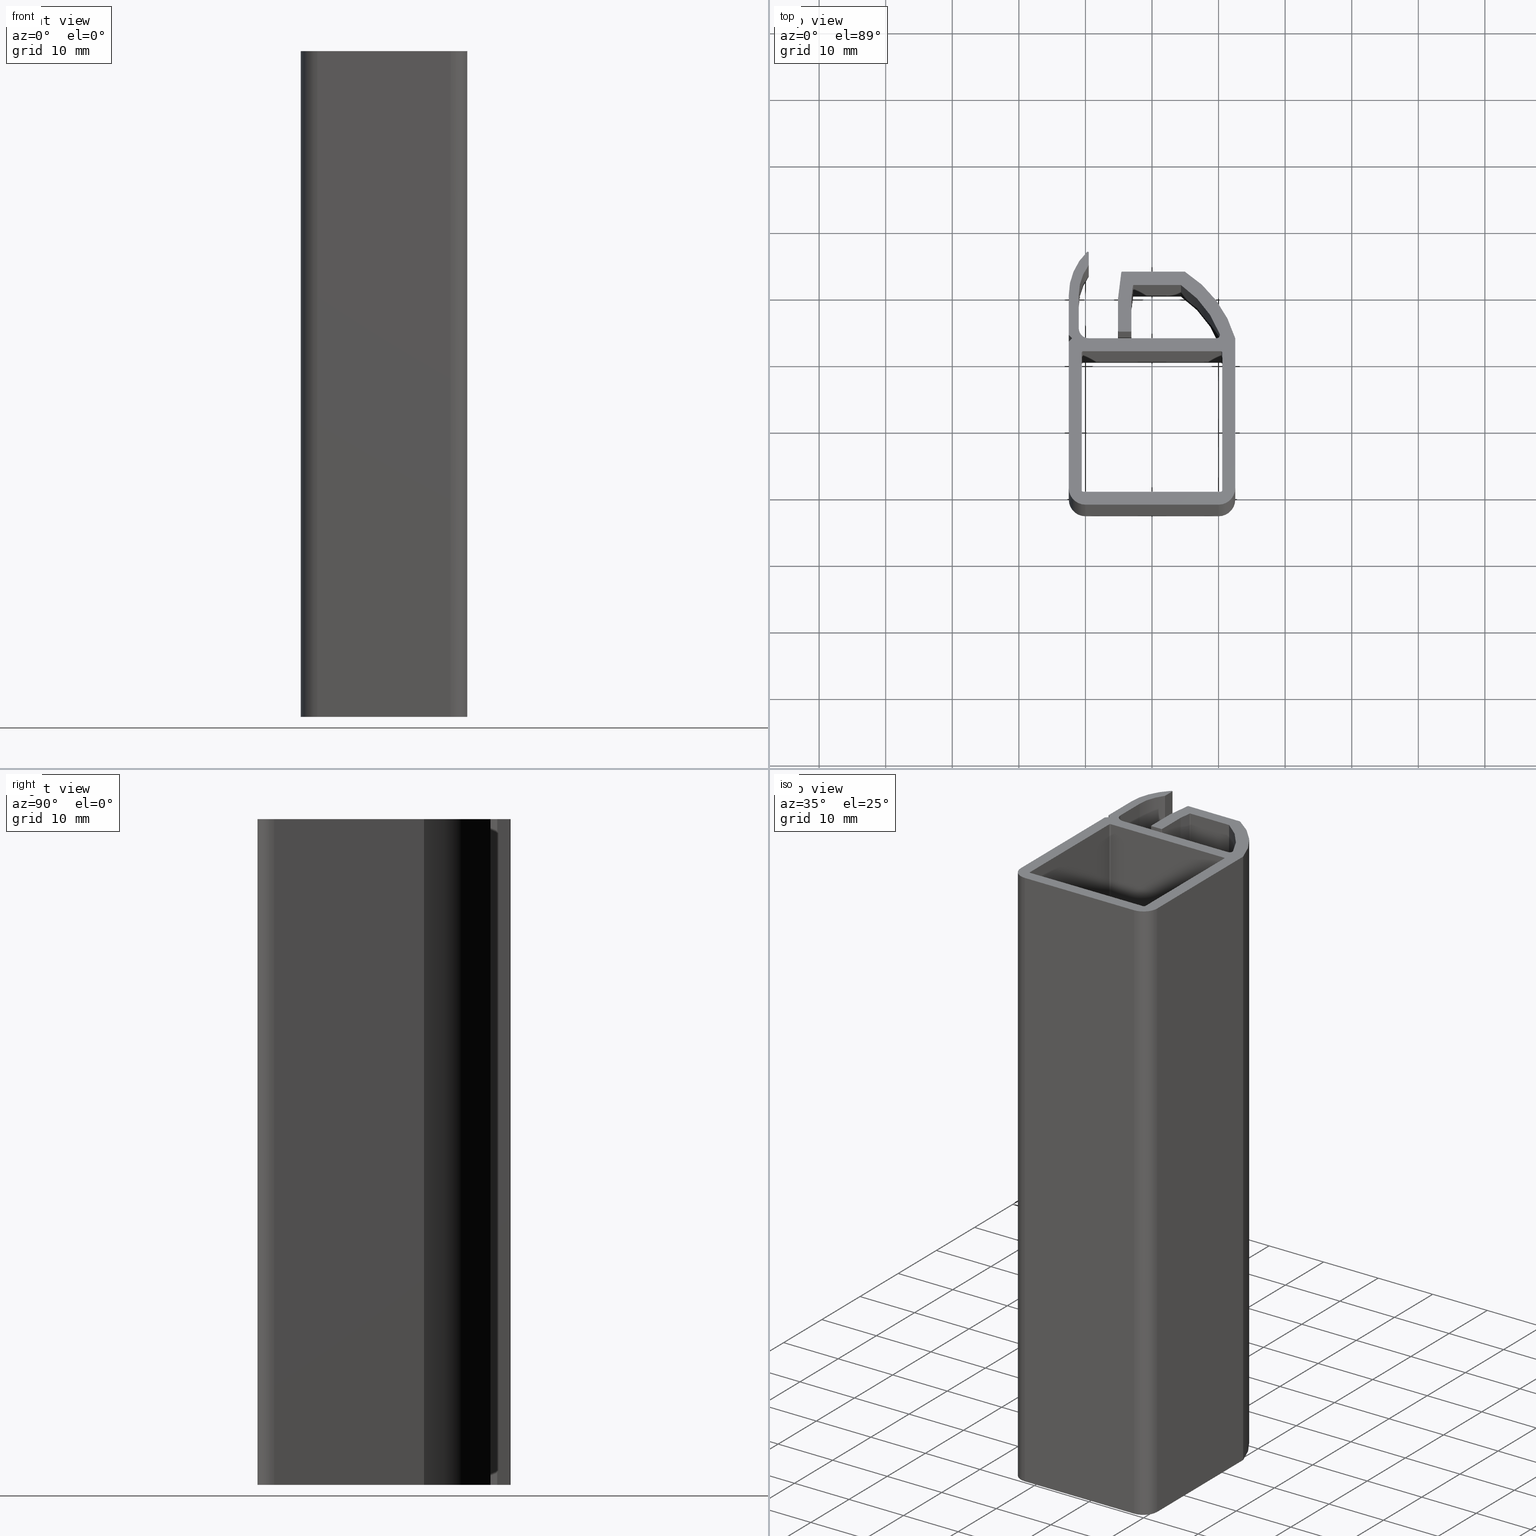
[diagram: canonical four-view strip — front | top / right | iso, engineering-drawing reading convention]
A machine part, canonical four-view strip (front | top / right | iso — engineering-drawing reading convention). The complete STEP part file that produces these views, byte-faithful:
ISO-10303-21;
HEADER;
/* Generated by software containing ST-Developer
 * from STEP Tools, Inc. (www.steptools.com) 
 */

FILE_DESCRIPTION(
/* description */ ('PROFILO Q25 1V #4 S/GUARN ARGENTO'),
/* implementation_level */ '2;1');

FILE_NAME(
/* name */ 'C:\\Users\\Tecnico5\\Documents\\BPRDD0000287.stp',
/* time_stamp */ '2020-09-11T15:48:25+02:00',
/* author */ ('tecnico5'),
/* organization */ (''),
/* preprocessor_version */ 'ST-DEVELOPER v17.2',
/* originating_system */ 'Autodesk Inventor 2019',
/* authorisation */ '');

FILE_SCHEMA (('AUTOMOTIVE_DESIGN { 1 0 10303 214 3 1 1 }'));
ENDSEC;

DATA;
#10=MECHANICAL_DESIGN_GEOMETRIC_PRESENTATION_REPRESENTATION('',(#13),#1489);
#11=SHAPE_REPRESENTATION_RELATIONSHIP('SRR','None',#1496,#12);
#12=ADVANCED_BREP_SHAPE_REPRESENTATION('',(#14),#1488);
#13=STYLED_ITEM('',(#1505),#14);
#14=MANIFOLD_SOLID_BREP('Solido1',#867);
#15=FACE_BOUND('',#93,.T.);
#16=FACE_BOUND('',#129,.T.);
#17=PLANE('',#890);
#18=PLANE('',#894);
#19=PLANE('',#898);
#20=PLANE('',#902);
#21=PLANE('',#903);
#22=PLANE('',#927);
#23=PLANE('',#930);
#24=PLANE('',#931);
#25=PLANE('',#934);
#26=PLANE('',#937);
#27=PLANE('',#938);
#28=PLANE('',#941);
#29=PLANE('',#946);
#30=PLANE('',#949);
#31=PLANE('',#952);
#32=PLANE('',#953);
#33=PLANE('',#954);
#34=PLANE('',#955);
#35=PLANE('',#960);
#36=PLANE('',#963);
#37=PLANE('',#968);
#38=PLANE('',#971);
#39=PLANE('',#972);
#40=FACE_OUTER_BOUND('',#84,.T.);
#41=FACE_OUTER_BOUND('',#85,.T.);
#42=FACE_OUTER_BOUND('',#86,.T.);
#43=FACE_OUTER_BOUND('',#87,.T.);
#44=FACE_OUTER_BOUND('',#88,.T.);
#45=FACE_OUTER_BOUND('',#89,.T.);
#46=FACE_OUTER_BOUND('',#90,.T.);
#47=FACE_OUTER_BOUND('',#91,.T.);
#48=FACE_OUTER_BOUND('',#92,.T.);
#49=FACE_OUTER_BOUND('',#94,.T.);
#50=FACE_OUTER_BOUND('',#95,.T.);
#51=FACE_OUTER_BOUND('',#96,.T.);
#52=FACE_OUTER_BOUND('',#97,.T.);
#53=FACE_OUTER_BOUND('',#98,.T.);
#54=FACE_OUTER_BOUND('',#99,.T.);
#55=FACE_OUTER_BOUND('',#100,.T.);
#56=FACE_OUTER_BOUND('',#101,.T.);
#57=FACE_OUTER_BOUND('',#102,.T.);
#58=FACE_OUTER_BOUND('',#103,.T.);
#59=FACE_OUTER_BOUND('',#104,.T.);
#60=FACE_OUTER_BOUND('',#105,.T.);
#61=FACE_OUTER_BOUND('',#106,.T.);
#62=FACE_OUTER_BOUND('',#107,.T.);
#63=FACE_OUTER_BOUND('',#108,.T.);
#64=FACE_OUTER_BOUND('',#109,.T.);
#65=FACE_OUTER_BOUND('',#110,.T.);
#66=FACE_OUTER_BOUND('',#111,.T.);
#67=FACE_OUTER_BOUND('',#112,.T.);
#68=FACE_OUTER_BOUND('',#113,.T.);
#69=FACE_OUTER_BOUND('',#114,.T.);
#70=FACE_OUTER_BOUND('',#115,.T.);
#71=FACE_OUTER_BOUND('',#116,.T.);
#72=FACE_OUTER_BOUND('',#117,.T.);
#73=FACE_OUTER_BOUND('',#118,.T.);
#74=FACE_OUTER_BOUND('',#119,.T.);
#75=FACE_OUTER_BOUND('',#120,.T.);
#76=FACE_OUTER_BOUND('',#121,.T.);
#77=FACE_OUTER_BOUND('',#122,.T.);
#78=FACE_OUTER_BOUND('',#123,.T.);
#79=FACE_OUTER_BOUND('',#124,.T.);
#80=FACE_OUTER_BOUND('',#125,.T.);
#81=FACE_OUTER_BOUND('',#126,.T.);
#82=FACE_OUTER_BOUND('',#127,.T.);
#83=FACE_OUTER_BOUND('',#128,.T.);
#84=EDGE_LOOP('',(#550,#551,#552,#553));
#85=EDGE_LOOP('',(#554,#555,#556,#557));
#86=EDGE_LOOP('',(#558,#559,#560,#561));
#87=EDGE_LOOP('',(#562,#563,#564,#565));
#88=EDGE_LOOP('',(#566,#567,#568,#569));
#89=EDGE_LOOP('',(#570,#571,#572,#573));
#90=EDGE_LOOP('',(#574,#575,#576,#577));
#91=EDGE_LOOP('',(#578,#579,#580,#581));
#92=EDGE_LOOP('',(#582,#583,#584,#585,#586,#587,#588,#589,#590,#591,#592,
#593,#594,#595,#596,#597,#598,#599,#600,#601,#602,#603,#604,#605,#606,#607,
#608,#609,#610,#611,#612,#613,#614,#615));
#93=EDGE_LOOP('',(#616,#617,#618,#619,#620,#621,#622,#623));
#94=EDGE_LOOP('',(#624,#625,#626,#627));
#95=EDGE_LOOP('',(#628,#629,#630,#631));
#96=EDGE_LOOP('',(#632,#633,#634,#635));
#97=EDGE_LOOP('',(#636,#637,#638,#639));
#98=EDGE_LOOP('',(#640,#641,#642,#643));
#99=EDGE_LOOP('',(#644,#645,#646,#647));
#100=EDGE_LOOP('',(#648,#649,#650,#651));
#101=EDGE_LOOP('',(#652,#653,#654,#655));
#102=EDGE_LOOP('',(#656,#657,#658,#659));
#103=EDGE_LOOP('',(#660,#661,#662,#663));
#104=EDGE_LOOP('',(#664,#665,#666,#667));
#105=EDGE_LOOP('',(#668,#669,#670,#671));
#106=EDGE_LOOP('',(#672,#673,#674,#675));
#107=EDGE_LOOP('',(#676,#677,#678,#679));
#108=EDGE_LOOP('',(#680,#681,#682,#683));
#109=EDGE_LOOP('',(#684,#685,#686,#687));
#110=EDGE_LOOP('',(#688,#689,#690,#691));
#111=EDGE_LOOP('',(#692,#693,#694,#695));
#112=EDGE_LOOP('',(#696,#697,#698,#699));
#113=EDGE_LOOP('',(#700,#701,#702,#703));
#114=EDGE_LOOP('',(#704,#705,#706,#707));
#115=EDGE_LOOP('',(#708,#709,#710,#711));
#116=EDGE_LOOP('',(#712,#713,#714,#715));
#117=EDGE_LOOP('',(#716,#717,#718,#719));
#118=EDGE_LOOP('',(#720,#721,#722,#723));
#119=EDGE_LOOP('',(#724,#725,#726,#727));
#120=EDGE_LOOP('',(#728,#729,#730,#731));
#121=EDGE_LOOP('',(#732,#733,#734,#735));
#122=EDGE_LOOP('',(#736,#737,#738,#739));
#123=EDGE_LOOP('',(#740,#741,#742,#743));
#124=EDGE_LOOP('',(#744,#745,#746,#747));
#125=EDGE_LOOP('',(#748,#749,#750,#751));
#126=EDGE_LOOP('',(#752,#753,#754,#755));
#127=EDGE_LOOP('',(#756,#757,#758,#759));
#128=EDGE_LOOP('',(#760,#761,#762,#763,#764,#765,#766,#767,#768,#769,#770,
#771,#772,#773,#774,#775,#776,#777,#778,#779,#780,#781,#782,#783,#784,#785,
#786,#787,#788,#789,#790,#791,#792,#793));
#129=EDGE_LOOP('',(#794,#795,#796,#797,#798,#799,#800,#801));
#130=CIRCLE('',#888,0.2);
#131=CIRCLE('',#889,0.2);
#132=CIRCLE('',#892,0.2);
#133=CIRCLE('',#893,0.2);
#134=CIRCLE('',#896,0.2);
#135=CIRCLE('',#897,0.2);
#136=CIRCLE('',#900,0.2);
#137=CIRCLE('',#901,0.2);
#138=CIRCLE('',#904,0.499999999999468);
#139=CIRCLE('',#905,15.7200451466629);
#140=CIRCLE('',#906,0.1);
#141=CIRCLE('',#907,0.1);
#142=CIRCLE('',#908,0.1);
#143=CIRCLE('',#909,0.1);
#144=CIRCLE('',#910,0.1);
#145=CIRCLE('',#911,0.1);
#146=CIRCLE('',#912,17.7200451466634);
#147=CIRCLE('',#913,2.49999999999904);
#148=CIRCLE('',#914,2.49999999999904);
#149=CIRCLE('',#915,8.99999999999988);
#150=CIRCLE('',#916,0.0999999999999999);
#151=CIRCLE('',#917,0.0999999999999999);
#152=CIRCLE('',#918,0.1);
#153=CIRCLE('',#919,7.50000000000033);
#154=CIRCLE('',#920,1.49999999999957);
#155=CIRCLE('',#922,0.499999999999468);
#156=CIRCLE('',#924,15.7200451466629);
#157=CIRCLE('',#926,0.1);
#158=CIRCLE('',#929,0.1);
#159=CIRCLE('',#933,0.1);
#160=CIRCLE('',#936,0.1);
#161=CIRCLE('',#940,0.1);
#162=CIRCLE('',#943,0.1);
#163=CIRCLE('',#945,17.7200451466634);
#164=CIRCLE('',#948,2.49999999999904);
#165=CIRCLE('',#951,2.49999999999904);
#166=CIRCLE('',#957,8.99999999999988);
#167=CIRCLE('',#959,0.0999999999999999);
#168=CIRCLE('',#962,0.0999999999999999);
#169=CIRCLE('',#965,0.1);
#170=CIRCLE('',#967,7.50000000000033);
#171=CIRCLE('',#970,1.49999999999957);
#172=LINE('',#1235,#256);
#173=LINE('',#1239,#257);
#174=LINE('',#1243,#258);
#175=LINE('',#1245,#259);
#176=LINE('',#1246,#260);
#177=LINE('',#1251,#261);
#178=LINE('',#1255,#262);
#179=LINE('',#1257,#263);
#180=LINE('',#1258,#264);
#181=LINE('',#1263,#265);
#182=LINE('',#1267,#266);
#183=LINE('',#1269,#267);
#184=LINE('',#1270,#268);
#185=LINE('',#1275,#269);
#186=LINE('',#1278,#270);
#187=LINE('',#1279,#271);
#188=LINE('',#1283,#272);
#189=LINE('',#1291,#273);
#190=LINE('',#1295,#274);
#191=LINE('',#1297,#275);
#192=LINE('',#1301,#276);
#193=LINE('',#1305,#277);
#194=LINE('',#1307,#278);
#195=LINE('',#1311,#279);
#196=LINE('',#1317,#280);
#197=LINE('',#1321,#281);
#198=LINE('',#1325,#282);
#199=LINE('',#1327,#283);
#200=LINE('',#1329,#284);
#201=LINE('',#1331,#285);
#202=LINE('',#1337,#286);
#203=LINE('',#1341,#287);
#204=LINE('',#1347,#288);
#205=LINE('',#1351,#289);
#206=LINE('',#1354,#290);
#207=LINE('',#1358,#291);
#208=LINE('',#1362,#292);
#209=LINE('',#1365,#293);
#210=LINE('',#1366,#294);
#211=LINE('',#1370,#295);
#212=LINE('',#1373,#296);
#213=LINE('',#1374,#297);
#214=LINE('',#1377,#298);
#215=LINE('',#1378,#299);
#216=LINE('',#1382,#300);
#217=LINE('',#1385,#301);
#218=LINE('',#1386,#302);
#219=LINE('',#1390,#303);
#220=LINE('',#1393,#304);
#221=LINE('',#1394,#305);
#222=LINE('',#1397,#306);
#223=LINE('',#1398,#307);
#224=LINE('',#1402,#308);
#225=LINE('',#1405,#309);
#226=LINE('',#1406,#310);
#227=LINE('',#1410,#311);
#228=LINE('',#1414,#312);
#229=LINE('',#1417,#313);
#230=LINE('',#1418,#314);
#231=LINE('',#1422,#315);
#232=LINE('',#1425,#316);
#233=LINE('',#1426,#317);
#234=LINE('',#1430,#318);
#235=LINE('',#1433,#319);
#236=LINE('',#1434,#320);
#237=LINE('',#1437,#321);
#238=LINE('',#1438,#322);
#239=LINE('',#1441,#323);
#240=LINE('',#1442,#324);
#241=LINE('',#1445,#325);
#242=LINE('',#1446,#326);
#243=LINE('',#1450,#327);
#244=LINE('',#1454,#328);
#245=LINE('',#1457,#329);
#246=LINE('',#1458,#330);
#247=LINE('',#1462,#331);
#248=LINE('',#1465,#332);
#249=LINE('',#1466,#333);
#250=LINE('',#1470,#334);
#251=LINE('',#1474,#335);
#252=LINE('',#1477,#336);
#253=LINE('',#1478,#337);
#254=LINE('',#1482,#338);
#255=LINE('',#1484,#339);
#256=VECTOR('',#977,10.);
#257=VECTOR('',#980,10.);
#258=VECTOR('',#985,10.);
#259=VECTOR('',#986,10.);
#260=VECTOR('',#987,10.);
#261=VECTOR('',#992,10.);
#262=VECTOR('',#997,10.);
#263=VECTOR('',#998,10.);
#264=VECTOR('',#999,10.);
#265=VECTOR('',#1004,10.);
#266=VECTOR('',#1009,10.);
#267=VECTOR('',#1010,10.);
#268=VECTOR('',#1011,10.);
#269=VECTOR('',#1016,10.);
#270=VECTOR('',#1021,10.);
#271=VECTOR('',#1022,10.);
#272=VECTOR('',#1025,10.);
#273=VECTOR('',#1032,10.);
#274=VECTOR('',#1035,10.);
#275=VECTOR('',#1036,10.);
#276=VECTOR('',#1039,10.);
#277=VECTOR('',#1042,10.);
#278=VECTOR('',#1043,10.);
#279=VECTOR('',#1046,10.);
#280=VECTOR('',#1051,10.);
#281=VECTOR('',#1054,10.);
#282=VECTOR('',#1057,10.);
#283=VECTOR('',#1058,10.);
#284=VECTOR('',#1059,10.);
#285=VECTOR('',#1060,10.);
#286=VECTOR('',#1065,10.);
#287=VECTOR('',#1068,10.);
#288=VECTOR('',#1073,10.);
#289=VECTOR('',#1078,10.);
#290=VECTOR('',#1081,10.);
#291=VECTOR('',#1086,10.);
#292=VECTOR('',#1091,10.);
#293=VECTOR('',#1094,10.);
#294=VECTOR('',#1095,10.);
#295=VECTOR('',#1100,10.);
#296=VECTOR('',#1103,10.);
#297=VECTOR('',#1104,10.);
#298=VECTOR('',#1107,10.);
#299=VECTOR('',#1108,10.);
#300=VECTOR('',#1113,10.);
#301=VECTOR('',#1116,10.);
#302=VECTOR('',#1117,10.);
#303=VECTOR('',#1122,10.);
#304=VECTOR('',#1125,10.);
#305=VECTOR('',#1126,10.);
#306=VECTOR('',#1129,10.);
#307=VECTOR('',#1130,10.);
#308=VECTOR('',#1135,10.);
#309=VECTOR('',#1138,10.);
#310=VECTOR('',#1139,10.);
#311=VECTOR('',#1144,10.);
#312=VECTOR('',#1149,10.);
#313=VECTOR('',#1152,10.);
#314=VECTOR('',#1153,10.);
#315=VECTOR('',#1158,10.);
#316=VECTOR('',#1161,10.);
#317=VECTOR('',#1162,10.);
#318=VECTOR('',#1167,10.);
#319=VECTOR('',#1170,10.);
#320=VECTOR('',#1171,10.);
#321=VECTOR('',#1174,10.);
#322=VECTOR('',#1175,10.);
#323=VECTOR('',#1178,10.);
#324=VECTOR('',#1179,10.);
#325=VECTOR('',#1182,10.);
#326=VECTOR('',#1183,10.);
#327=VECTOR('',#1188,10.);
#328=VECTOR('',#1193,10.);
#329=VECTOR('',#1196,10.);
#330=VECTOR('',#1197,10.);
#331=VECTOR('',#1202,10.);
#332=VECTOR('',#1205,10.);
#333=VECTOR('',#1206,10.);
#334=VECTOR('',#1211,10.);
#335=VECTOR('',#1216,10.);
#336=VECTOR('',#1219,10.);
#337=VECTOR('',#1220,10.);
#338=VECTOR('',#1225,10.);
#339=VECTOR('',#1228,10.);
#340=VERTEX_POINT('',#1233);
#341=VERTEX_POINT('',#1234);
#342=VERTEX_POINT('',#1236);
#343=VERTEX_POINT('',#1238);
#344=VERTEX_POINT('',#1242);
#345=VERTEX_POINT('',#1244);
#346=VERTEX_POINT('',#1248);
#347=VERTEX_POINT('',#1250);
#348=VERTEX_POINT('',#1254);
#349=VERTEX_POINT('',#1256);
#350=VERTEX_POINT('',#1260);
#351=VERTEX_POINT('',#1262);
#352=VERTEX_POINT('',#1266);
#353=VERTEX_POINT('',#1268);
#354=VERTEX_POINT('',#1272);
#355=VERTEX_POINT('',#1274);
#356=VERTEX_POINT('',#1281);
#357=VERTEX_POINT('',#1282);
#358=VERTEX_POINT('',#1284);
#359=VERTEX_POINT('',#1286);
#360=VERTEX_POINT('',#1288);
#361=VERTEX_POINT('',#1290);
#362=VERTEX_POINT('',#1292);
#363=VERTEX_POINT('',#1294);
#364=VERTEX_POINT('',#1296);
#365=VERTEX_POINT('',#1298);
#366=VERTEX_POINT('',#1300);
#367=VERTEX_POINT('',#1302);
#368=VERTEX_POINT('',#1304);
#369=VERTEX_POINT('',#1306);
#370=VERTEX_POINT('',#1308);
#371=VERTEX_POINT('',#1310);
#372=VERTEX_POINT('',#1312);
#373=VERTEX_POINT('',#1314);
#374=VERTEX_POINT('',#1316);
#375=VERTEX_POINT('',#1318);
#376=VERTEX_POINT('',#1320);
#377=VERTEX_POINT('',#1322);
#378=VERTEX_POINT('',#1324);
#379=VERTEX_POINT('',#1326);
#380=VERTEX_POINT('',#1328);
#381=VERTEX_POINT('',#1330);
#382=VERTEX_POINT('',#1332);
#383=VERTEX_POINT('',#1334);
#384=VERTEX_POINT('',#1336);
#385=VERTEX_POINT('',#1338);
#386=VERTEX_POINT('',#1340);
#387=VERTEX_POINT('',#1342);
#388=VERTEX_POINT('',#1344);
#389=VERTEX_POINT('',#1346);
#390=VERTEX_POINT('',#1350);
#391=VERTEX_POINT('',#1352);
#392=VERTEX_POINT('',#1356);
#393=VERTEX_POINT('',#1360);
#394=VERTEX_POINT('',#1364);
#395=VERTEX_POINT('',#1368);
#396=VERTEX_POINT('',#1372);
#397=VERTEX_POINT('',#1376);
#398=VERTEX_POINT('',#1380);
#399=VERTEX_POINT('',#1384);
#400=VERTEX_POINT('',#1388);
#401=VERTEX_POINT('',#1392);
#402=VERTEX_POINT('',#1396);
#403=VERTEX_POINT('',#1400);
#404=VERTEX_POINT('',#1404);
#405=VERTEX_POINT('',#1408);
#406=VERTEX_POINT('',#1412);
#407=VERTEX_POINT('',#1416);
#408=VERTEX_POINT('',#1420);
#409=VERTEX_POINT('',#1424);
#410=VERTEX_POINT('',#1428);
#411=VERTEX_POINT('',#1432);
#412=VERTEX_POINT('',#1436);
#413=VERTEX_POINT('',#1440);
#414=VERTEX_POINT('',#1444);
#415=VERTEX_POINT('',#1448);
#416=VERTEX_POINT('',#1452);
#417=VERTEX_POINT('',#1456);
#418=VERTEX_POINT('',#1460);
#419=VERTEX_POINT('',#1464);
#420=VERTEX_POINT('',#1468);
#421=VERTEX_POINT('',#1472);
#422=VERTEX_POINT('',#1476);
#423=VERTEX_POINT('',#1480);
#424=EDGE_CURVE('',#340,#341,#172,.T.);
#425=EDGE_CURVE('',#342,#341,#130,.T.);
#426=EDGE_CURVE('',#342,#343,#173,.T.);
#427=EDGE_CURVE('',#340,#343,#131,.T.);
#428=EDGE_CURVE('',#344,#342,#174,.T.);
#429=EDGE_CURVE('',#344,#345,#175,.T.);
#430=EDGE_CURVE('',#343,#345,#176,.T.);
#431=EDGE_CURVE('',#346,#344,#132,.T.);
#432=EDGE_CURVE('',#346,#347,#177,.T.);
#433=EDGE_CURVE('',#345,#347,#133,.T.);
#434=EDGE_CURVE('',#348,#346,#178,.T.);
#435=EDGE_CURVE('',#348,#349,#179,.T.);
#436=EDGE_CURVE('',#347,#349,#180,.T.);
#437=EDGE_CURVE('',#350,#348,#134,.T.);
#438=EDGE_CURVE('',#350,#351,#181,.T.);
#439=EDGE_CURVE('',#349,#351,#135,.T.);
#440=EDGE_CURVE('',#352,#350,#182,.T.);
#441=EDGE_CURVE('',#352,#353,#183,.T.);
#442=EDGE_CURVE('',#351,#353,#184,.T.);
#443=EDGE_CURVE('',#354,#352,#136,.T.);
#444=EDGE_CURVE('',#354,#355,#185,.T.);
#445=EDGE_CURVE('',#353,#355,#137,.T.);
#446=EDGE_CURVE('',#341,#354,#186,.T.);
#447=EDGE_CURVE('',#355,#340,#187,.T.);
#448=EDGE_CURVE('',#356,#357,#188,.T.);
#449=EDGE_CURVE('',#357,#358,#138,.T.);
#450=EDGE_CURVE('',#358,#359,#139,.T.);
#451=EDGE_CURVE('',#359,#360,#140,.T.);
#452=EDGE_CURVE('',#360,#361,#189,.T.);
#453=EDGE_CURVE('',#361,#362,#141,.T.);
#454=EDGE_CURVE('',#362,#363,#190,.T.);
#455=EDGE_CURVE('',#363,#364,#191,.T.);
#456=EDGE_CURVE('',#364,#365,#142,.T.);
#457=EDGE_CURVE('',#365,#366,#192,.T.);
#458=EDGE_CURVE('',#366,#367,#143,.T.);
#459=EDGE_CURVE('',#367,#368,#193,.T.);
#460=EDGE_CURVE('',#368,#369,#194,.T.);
#461=EDGE_CURVE('',#369,#370,#144,.T.);
#462=EDGE_CURVE('',#370,#371,#195,.T.);
#463=EDGE_CURVE('',#371,#372,#145,.T.);
#464=EDGE_CURVE('',#372,#373,#146,.T.);
#465=EDGE_CURVE('',#373,#374,#196,.T.);
#466=EDGE_CURVE('',#374,#375,#147,.T.);
#467=EDGE_CURVE('',#375,#376,#197,.T.);
#468=EDGE_CURVE('',#376,#377,#148,.T.);
#469=EDGE_CURVE('',#377,#378,#198,.T.);
#470=EDGE_CURVE('',#378,#379,#199,.T.);
#471=EDGE_CURVE('',#379,#380,#200,.T.);
#472=EDGE_CURVE('',#380,#381,#201,.T.);
#473=EDGE_CURVE('',#381,#382,#149,.T.);
#474=EDGE_CURVE('',#382,#383,#150,.T.);
#475=EDGE_CURVE('',#383,#384,#202,.T.);
#476=EDGE_CURVE('',#384,#385,#151,.T.);
#477=EDGE_CURVE('',#385,#386,#203,.T.);
#478=EDGE_CURVE('',#386,#387,#152,.T.);
#479=EDGE_CURVE('',#387,#388,#153,.T.);
#480=EDGE_CURVE('',#388,#389,#204,.T.);
#481=EDGE_CURVE('',#389,#356,#154,.T.);
#482=EDGE_CURVE('',#390,#357,#205,.T.);
#483=EDGE_CURVE('',#391,#390,#155,.T.);
#484=EDGE_CURVE('',#358,#391,#206,.T.);
#485=EDGE_CURVE('',#392,#391,#156,.T.);
#486=EDGE_CURVE('',#359,#392,#207,.T.);
#487=EDGE_CURVE('',#393,#392,#157,.T.);
#488=EDGE_CURVE('',#360,#393,#208,.T.);
#489=EDGE_CURVE('',#394,#393,#209,.T.);
#490=EDGE_CURVE('',#361,#394,#210,.T.);
#491=EDGE_CURVE('',#395,#394,#158,.T.);
#492=EDGE_CURVE('',#362,#395,#211,.T.);
#493=EDGE_CURVE('',#396,#395,#212,.T.);
#494=EDGE_CURVE('',#363,#396,#213,.T.);
#495=EDGE_CURVE('',#397,#396,#214,.T.);
#496=EDGE_CURVE('',#364,#397,#215,.T.);
#497=EDGE_CURVE('',#398,#397,#159,.T.);
#498=EDGE_CURVE('',#365,#398,#216,.T.);
#499=EDGE_CURVE('',#399,#398,#217,.T.);
#500=EDGE_CURVE('',#366,#399,#218,.T.);
#501=EDGE_CURVE('',#400,#399,#160,.T.);
#502=EDGE_CURVE('',#367,#400,#219,.T.);
#503=EDGE_CURVE('',#401,#400,#220,.T.);
#504=EDGE_CURVE('',#368,#401,#221,.T.);
#505=EDGE_CURVE('',#402,#401,#222,.T.);
#506=EDGE_CURVE('',#369,#402,#223,.T.);
#507=EDGE_CURVE('',#403,#402,#161,.T.);
#508=EDGE_CURVE('',#370,#403,#224,.T.);
#509=EDGE_CURVE('',#404,#403,#225,.T.);
#510=EDGE_CURVE('',#371,#404,#226,.T.);
#511=EDGE_CURVE('',#405,#404,#162,.T.);
#512=EDGE_CURVE('',#372,#405,#227,.T.);
#513=EDGE_CURVE('',#406,#405,#163,.T.);
#514=EDGE_CURVE('',#373,#406,#228,.T.);
#515=EDGE_CURVE('',#407,#406,#229,.T.);
#516=EDGE_CURVE('',#374,#407,#230,.T.);
#517=EDGE_CURVE('',#408,#407,#164,.T.);
#518=EDGE_CURVE('',#375,#408,#231,.T.);
#519=EDGE_CURVE('',#409,#408,#232,.T.);
#520=EDGE_CURVE('',#376,#409,#233,.T.);
#521=EDGE_CURVE('',#410,#409,#165,.T.);
#522=EDGE_CURVE('',#377,#410,#234,.T.);
#523=EDGE_CURVE('',#411,#410,#235,.T.);
#524=EDGE_CURVE('',#378,#411,#236,.T.);
#525=EDGE_CURVE('',#412,#411,#237,.T.);
#526=EDGE_CURVE('',#379,#412,#238,.T.);
#527=EDGE_CURVE('',#413,#412,#239,.T.);
#528=EDGE_CURVE('',#380,#413,#240,.T.);
#529=EDGE_CURVE('',#414,#413,#241,.T.);
#530=EDGE_CURVE('',#381,#414,#242,.T.);
#531=EDGE_CURVE('',#415,#414,#166,.T.);
#532=EDGE_CURVE('',#382,#415,#243,.T.);
#533=EDGE_CURVE('',#416,#415,#167,.T.);
#534=EDGE_CURVE('',#383,#416,#244,.T.);
#535=EDGE_CURVE('',#417,#416,#245,.T.);
#536=EDGE_CURVE('',#384,#417,#246,.T.);
#537=EDGE_CURVE('',#418,#417,#168,.T.);
#538=EDGE_CURVE('',#385,#418,#247,.T.);
#539=EDGE_CURVE('',#419,#418,#248,.T.);
#540=EDGE_CURVE('',#386,#419,#249,.T.);
#541=EDGE_CURVE('',#420,#419,#169,.T.);
#542=EDGE_CURVE('',#387,#420,#250,.T.);
#543=EDGE_CURVE('',#421,#420,#170,.T.);
#544=EDGE_CURVE('',#388,#421,#251,.T.);
#545=EDGE_CURVE('',#422,#421,#252,.T.);
#546=EDGE_CURVE('',#389,#422,#253,.T.);
#547=EDGE_CURVE('',#423,#422,#171,.T.);
#548=EDGE_CURVE('',#356,#423,#254,.T.);
#549=EDGE_CURVE('',#390,#423,#255,.T.);
#550=ORIENTED_EDGE('',*,*,#424,.T.);
#551=ORIENTED_EDGE('',*,*,#425,.F.);
#552=ORIENTED_EDGE('',*,*,#426,.T.);
#553=ORIENTED_EDGE('',*,*,#427,.F.);
#554=ORIENTED_EDGE('',*,*,#426,.F.);
#555=ORIENTED_EDGE('',*,*,#428,.F.);
#556=ORIENTED_EDGE('',*,*,#429,.T.);
#557=ORIENTED_EDGE('',*,*,#430,.F.);
#558=ORIENTED_EDGE('',*,*,#429,.F.);
#559=ORIENTED_EDGE('',*,*,#431,.F.);
#560=ORIENTED_EDGE('',*,*,#432,.T.);
#561=ORIENTED_EDGE('',*,*,#433,.F.);
#562=ORIENTED_EDGE('',*,*,#432,.F.);
#563=ORIENTED_EDGE('',*,*,#434,.F.);
#564=ORIENTED_EDGE('',*,*,#435,.T.);
#565=ORIENTED_EDGE('',*,*,#436,.F.);
#566=ORIENTED_EDGE('',*,*,#435,.F.);
#567=ORIENTED_EDGE('',*,*,#437,.F.);
#568=ORIENTED_EDGE('',*,*,#438,.T.);
#569=ORIENTED_EDGE('',*,*,#439,.F.);
#570=ORIENTED_EDGE('',*,*,#438,.F.);
#571=ORIENTED_EDGE('',*,*,#440,.F.);
#572=ORIENTED_EDGE('',*,*,#441,.T.);
#573=ORIENTED_EDGE('',*,*,#442,.F.);
#574=ORIENTED_EDGE('',*,*,#441,.F.);
#575=ORIENTED_EDGE('',*,*,#443,.F.);
#576=ORIENTED_EDGE('',*,*,#444,.T.);
#577=ORIENTED_EDGE('',*,*,#445,.F.);
#578=ORIENTED_EDGE('',*,*,#444,.F.);
#579=ORIENTED_EDGE('',*,*,#446,.F.);
#580=ORIENTED_EDGE('',*,*,#424,.F.);
#581=ORIENTED_EDGE('',*,*,#447,.F.);
#582=ORIENTED_EDGE('',*,*,#448,.T.);
#583=ORIENTED_EDGE('',*,*,#449,.T.);
#584=ORIENTED_EDGE('',*,*,#450,.T.);
#585=ORIENTED_EDGE('',*,*,#451,.T.);
#586=ORIENTED_EDGE('',*,*,#452,.T.);
#587=ORIENTED_EDGE('',*,*,#453,.T.);
#588=ORIENTED_EDGE('',*,*,#454,.T.);
#589=ORIENTED_EDGE('',*,*,#455,.T.);
#590=ORIENTED_EDGE('',*,*,#456,.T.);
#591=ORIENTED_EDGE('',*,*,#457,.T.);
#592=ORIENTED_EDGE('',*,*,#458,.T.);
#593=ORIENTED_EDGE('',*,*,#459,.T.);
#594=ORIENTED_EDGE('',*,*,#460,.T.);
#595=ORIENTED_EDGE('',*,*,#461,.T.);
#596=ORIENTED_EDGE('',*,*,#462,.T.);
#597=ORIENTED_EDGE('',*,*,#463,.T.);
#598=ORIENTED_EDGE('',*,*,#464,.T.);
#599=ORIENTED_EDGE('',*,*,#465,.T.);
#600=ORIENTED_EDGE('',*,*,#466,.T.);
#601=ORIENTED_EDGE('',*,*,#467,.T.);
#602=ORIENTED_EDGE('',*,*,#468,.T.);
#603=ORIENTED_EDGE('',*,*,#469,.T.);
#604=ORIENTED_EDGE('',*,*,#470,.T.);
#605=ORIENTED_EDGE('',*,*,#471,.T.);
#606=ORIENTED_EDGE('',*,*,#472,.T.);
#607=ORIENTED_EDGE('',*,*,#473,.T.);
#608=ORIENTED_EDGE('',*,*,#474,.T.);
#609=ORIENTED_EDGE('',*,*,#475,.T.);
#610=ORIENTED_EDGE('',*,*,#476,.T.);
#611=ORIENTED_EDGE('',*,*,#477,.T.);
#612=ORIENTED_EDGE('',*,*,#478,.T.);
#613=ORIENTED_EDGE('',*,*,#479,.T.);
#614=ORIENTED_EDGE('',*,*,#480,.T.);
#615=ORIENTED_EDGE('',*,*,#481,.T.);
#616=ORIENTED_EDGE('',*,*,#425,.T.);
#617=ORIENTED_EDGE('',*,*,#446,.T.);
#618=ORIENTED_EDGE('',*,*,#443,.T.);
#619=ORIENTED_EDGE('',*,*,#440,.T.);
#620=ORIENTED_EDGE('',*,*,#437,.T.);
#621=ORIENTED_EDGE('',*,*,#434,.T.);
#622=ORIENTED_EDGE('',*,*,#431,.T.);
#623=ORIENTED_EDGE('',*,*,#428,.T.);
#624=ORIENTED_EDGE('',*,*,#482,.F.);
#625=ORIENTED_EDGE('',*,*,#483,.F.);
#626=ORIENTED_EDGE('',*,*,#484,.F.);
#627=ORIENTED_EDGE('',*,*,#449,.F.);
#628=ORIENTED_EDGE('',*,*,#484,.T.);
#629=ORIENTED_EDGE('',*,*,#485,.F.);
#630=ORIENTED_EDGE('',*,*,#486,.F.);
#631=ORIENTED_EDGE('',*,*,#450,.F.);
#632=ORIENTED_EDGE('',*,*,#486,.T.);
#633=ORIENTED_EDGE('',*,*,#487,.F.);
#634=ORIENTED_EDGE('',*,*,#488,.F.);
#635=ORIENTED_EDGE('',*,*,#451,.F.);
#636=ORIENTED_EDGE('',*,*,#488,.T.);
#637=ORIENTED_EDGE('',*,*,#489,.F.);
#638=ORIENTED_EDGE('',*,*,#490,.F.);
#639=ORIENTED_EDGE('',*,*,#452,.F.);
#640=ORIENTED_EDGE('',*,*,#490,.T.);
#641=ORIENTED_EDGE('',*,*,#491,.F.);
#642=ORIENTED_EDGE('',*,*,#492,.F.);
#643=ORIENTED_EDGE('',*,*,#453,.F.);
#644=ORIENTED_EDGE('',*,*,#492,.T.);
#645=ORIENTED_EDGE('',*,*,#493,.F.);
#646=ORIENTED_EDGE('',*,*,#494,.F.);
#647=ORIENTED_EDGE('',*,*,#454,.F.);
#648=ORIENTED_EDGE('',*,*,#494,.T.);
#649=ORIENTED_EDGE('',*,*,#495,.F.);
#650=ORIENTED_EDGE('',*,*,#496,.F.);
#651=ORIENTED_EDGE('',*,*,#455,.F.);
#652=ORIENTED_EDGE('',*,*,#496,.T.);
#653=ORIENTED_EDGE('',*,*,#497,.F.);
#654=ORIENTED_EDGE('',*,*,#498,.F.);
#655=ORIENTED_EDGE('',*,*,#456,.F.);
#656=ORIENTED_EDGE('',*,*,#498,.T.);
#657=ORIENTED_EDGE('',*,*,#499,.F.);
#658=ORIENTED_EDGE('',*,*,#500,.F.);
#659=ORIENTED_EDGE('',*,*,#457,.F.);
#660=ORIENTED_EDGE('',*,*,#500,.T.);
#661=ORIENTED_EDGE('',*,*,#501,.F.);
#662=ORIENTED_EDGE('',*,*,#502,.F.);
#663=ORIENTED_EDGE('',*,*,#458,.F.);
#664=ORIENTED_EDGE('',*,*,#502,.T.);
#665=ORIENTED_EDGE('',*,*,#503,.F.);
#666=ORIENTED_EDGE('',*,*,#504,.F.);
#667=ORIENTED_EDGE('',*,*,#459,.F.);
#668=ORIENTED_EDGE('',*,*,#504,.T.);
#669=ORIENTED_EDGE('',*,*,#505,.F.);
#670=ORIENTED_EDGE('',*,*,#506,.F.);
#671=ORIENTED_EDGE('',*,*,#460,.F.);
#672=ORIENTED_EDGE('',*,*,#506,.T.);
#673=ORIENTED_EDGE('',*,*,#507,.F.);
#674=ORIENTED_EDGE('',*,*,#508,.F.);
#675=ORIENTED_EDGE('',*,*,#461,.F.);
#676=ORIENTED_EDGE('',*,*,#508,.T.);
#677=ORIENTED_EDGE('',*,*,#509,.F.);
#678=ORIENTED_EDGE('',*,*,#510,.F.);
#679=ORIENTED_EDGE('',*,*,#462,.F.);
#680=ORIENTED_EDGE('',*,*,#510,.T.);
#681=ORIENTED_EDGE('',*,*,#511,.F.);
#682=ORIENTED_EDGE('',*,*,#512,.F.);
#683=ORIENTED_EDGE('',*,*,#463,.F.);
#684=ORIENTED_EDGE('',*,*,#512,.T.);
#685=ORIENTED_EDGE('',*,*,#513,.F.);
#686=ORIENTED_EDGE('',*,*,#514,.F.);
#687=ORIENTED_EDGE('',*,*,#464,.F.);
#688=ORIENTED_EDGE('',*,*,#514,.T.);
#689=ORIENTED_EDGE('',*,*,#515,.F.);
#690=ORIENTED_EDGE('',*,*,#516,.F.);
#691=ORIENTED_EDGE('',*,*,#465,.F.);
#692=ORIENTED_EDGE('',*,*,#516,.T.);
#693=ORIENTED_EDGE('',*,*,#517,.F.);
#694=ORIENTED_EDGE('',*,*,#518,.F.);
#695=ORIENTED_EDGE('',*,*,#466,.F.);
#696=ORIENTED_EDGE('',*,*,#518,.T.);
#697=ORIENTED_EDGE('',*,*,#519,.F.);
#698=ORIENTED_EDGE('',*,*,#520,.F.);
#699=ORIENTED_EDGE('',*,*,#467,.F.);
#700=ORIENTED_EDGE('',*,*,#520,.T.);
#701=ORIENTED_EDGE('',*,*,#521,.F.);
#702=ORIENTED_EDGE('',*,*,#522,.F.);
#703=ORIENTED_EDGE('',*,*,#468,.F.);
#704=ORIENTED_EDGE('',*,*,#522,.T.);
#705=ORIENTED_EDGE('',*,*,#523,.F.);
#706=ORIENTED_EDGE('',*,*,#524,.F.);
#707=ORIENTED_EDGE('',*,*,#469,.F.);
#708=ORIENTED_EDGE('',*,*,#524,.T.);
#709=ORIENTED_EDGE('',*,*,#525,.F.);
#710=ORIENTED_EDGE('',*,*,#526,.F.);
#711=ORIENTED_EDGE('',*,*,#470,.F.);
#712=ORIENTED_EDGE('',*,*,#526,.T.);
#713=ORIENTED_EDGE('',*,*,#527,.F.);
#714=ORIENTED_EDGE('',*,*,#528,.F.);
#715=ORIENTED_EDGE('',*,*,#471,.F.);
#716=ORIENTED_EDGE('',*,*,#528,.T.);
#717=ORIENTED_EDGE('',*,*,#529,.F.);
#718=ORIENTED_EDGE('',*,*,#530,.F.);
#719=ORIENTED_EDGE('',*,*,#472,.F.);
#720=ORIENTED_EDGE('',*,*,#530,.T.);
#721=ORIENTED_EDGE('',*,*,#531,.F.);
#722=ORIENTED_EDGE('',*,*,#532,.F.);
#723=ORIENTED_EDGE('',*,*,#473,.F.);
#724=ORIENTED_EDGE('',*,*,#532,.T.);
#725=ORIENTED_EDGE('',*,*,#533,.F.);
#726=ORIENTED_EDGE('',*,*,#534,.F.);
#727=ORIENTED_EDGE('',*,*,#474,.F.);
#728=ORIENTED_EDGE('',*,*,#534,.T.);
#729=ORIENTED_EDGE('',*,*,#535,.F.);
#730=ORIENTED_EDGE('',*,*,#536,.F.);
#731=ORIENTED_EDGE('',*,*,#475,.F.);
#732=ORIENTED_EDGE('',*,*,#536,.T.);
#733=ORIENTED_EDGE('',*,*,#537,.F.);
#734=ORIENTED_EDGE('',*,*,#538,.F.);
#735=ORIENTED_EDGE('',*,*,#476,.F.);
#736=ORIENTED_EDGE('',*,*,#538,.T.);
#737=ORIENTED_EDGE('',*,*,#539,.F.);
#738=ORIENTED_EDGE('',*,*,#540,.F.);
#739=ORIENTED_EDGE('',*,*,#477,.F.);
#740=ORIENTED_EDGE('',*,*,#540,.T.);
#741=ORIENTED_EDGE('',*,*,#541,.F.);
#742=ORIENTED_EDGE('',*,*,#542,.F.);
#743=ORIENTED_EDGE('',*,*,#478,.F.);
#744=ORIENTED_EDGE('',*,*,#542,.T.);
#745=ORIENTED_EDGE('',*,*,#543,.F.);
#746=ORIENTED_EDGE('',*,*,#544,.F.);
#747=ORIENTED_EDGE('',*,*,#479,.F.);
#748=ORIENTED_EDGE('',*,*,#544,.T.);
#749=ORIENTED_EDGE('',*,*,#545,.F.);
#750=ORIENTED_EDGE('',*,*,#546,.F.);
#751=ORIENTED_EDGE('',*,*,#480,.F.);
#752=ORIENTED_EDGE('',*,*,#546,.T.);
#753=ORIENTED_EDGE('',*,*,#547,.F.);
#754=ORIENTED_EDGE('',*,*,#548,.F.);
#755=ORIENTED_EDGE('',*,*,#481,.F.);
#756=ORIENTED_EDGE('',*,*,#548,.T.);
#757=ORIENTED_EDGE('',*,*,#549,.F.);
#758=ORIENTED_EDGE('',*,*,#482,.T.);
#759=ORIENTED_EDGE('',*,*,#448,.F.);
#760=ORIENTED_EDGE('',*,*,#549,.T.);
#761=ORIENTED_EDGE('',*,*,#547,.T.);
#762=ORIENTED_EDGE('',*,*,#545,.T.);
#763=ORIENTED_EDGE('',*,*,#543,.T.);
#764=ORIENTED_EDGE('',*,*,#541,.T.);
#765=ORIENTED_EDGE('',*,*,#539,.T.);
#766=ORIENTED_EDGE('',*,*,#537,.T.);
#767=ORIENTED_EDGE('',*,*,#535,.T.);
#768=ORIENTED_EDGE('',*,*,#533,.T.);
#769=ORIENTED_EDGE('',*,*,#531,.T.);
#770=ORIENTED_EDGE('',*,*,#529,.T.);
#771=ORIENTED_EDGE('',*,*,#527,.T.);
#772=ORIENTED_EDGE('',*,*,#525,.T.);
#773=ORIENTED_EDGE('',*,*,#523,.T.);
#774=ORIENTED_EDGE('',*,*,#521,.T.);
#775=ORIENTED_EDGE('',*,*,#519,.T.);
#776=ORIENTED_EDGE('',*,*,#517,.T.);
#777=ORIENTED_EDGE('',*,*,#515,.T.);
#778=ORIENTED_EDGE('',*,*,#513,.T.);
#779=ORIENTED_EDGE('',*,*,#511,.T.);
#780=ORIENTED_EDGE('',*,*,#509,.T.);
#781=ORIENTED_EDGE('',*,*,#507,.T.);
#782=ORIENTED_EDGE('',*,*,#505,.T.);
#783=ORIENTED_EDGE('',*,*,#503,.T.);
#784=ORIENTED_EDGE('',*,*,#501,.T.);
#785=ORIENTED_EDGE('',*,*,#499,.T.);
#786=ORIENTED_EDGE('',*,*,#497,.T.);
#787=ORIENTED_EDGE('',*,*,#495,.T.);
#788=ORIENTED_EDGE('',*,*,#493,.T.);
#789=ORIENTED_EDGE('',*,*,#491,.T.);
#790=ORIENTED_EDGE('',*,*,#489,.T.);
#791=ORIENTED_EDGE('',*,*,#487,.T.);
#792=ORIENTED_EDGE('',*,*,#485,.T.);
#793=ORIENTED_EDGE('',*,*,#483,.T.);
#794=ORIENTED_EDGE('',*,*,#427,.T.);
#795=ORIENTED_EDGE('',*,*,#430,.T.);
#796=ORIENTED_EDGE('',*,*,#433,.T.);
#797=ORIENTED_EDGE('',*,*,#436,.T.);
#798=ORIENTED_EDGE('',*,*,#439,.T.);
#799=ORIENTED_EDGE('',*,*,#442,.T.);
#800=ORIENTED_EDGE('',*,*,#445,.T.);
#801=ORIENTED_EDGE('',*,*,#447,.T.);
#802=CYLINDRICAL_SURFACE('',#887,0.2);
#803=CYLINDRICAL_SURFACE('',#891,0.2);
#804=CYLINDRICAL_SURFACE('',#895,0.2);
#805=CYLINDRICAL_SURFACE('',#899,0.2);
#806=CYLINDRICAL_SURFACE('',#921,0.499999999999468);
#807=CYLINDRICAL_SURFACE('',#923,15.7200451466629);
#808=CYLINDRICAL_SURFACE('',#925,0.1);
#809=CYLINDRICAL_SURFACE('',#928,0.1);
#810=CYLINDRICAL_SURFACE('',#932,0.1);
#811=CYLINDRICAL_SURFACE('',#935,0.1);
#812=CYLINDRICAL_SURFACE('',#939,0.1);
#813=CYLINDRICAL_SURFACE('',#942,0.1);
#814=CYLINDRICAL_SURFACE('',#944,17.7200451466634);
#815=CYLINDRICAL_SURFACE('',#947,2.49999999999904);
#816=CYLINDRICAL_SURFACE('',#950,2.49999999999904);
#817=CYLINDRICAL_SURFACE('',#956,8.99999999999988);
#818=CYLINDRICAL_SURFACE('',#958,0.0999999999999999);
#819=CYLINDRICAL_SURFACE('',#961,0.0999999999999999);
#820=CYLINDRICAL_SURFACE('',#964,0.1);
#821=CYLINDRICAL_SURFACE('',#966,7.50000000000033);
#822=CYLINDRICAL_SURFACE('',#969,1.49999999999957);
#823=ADVANCED_FACE('',(#40),#802,.F.);
#824=ADVANCED_FACE('',(#41),#17,.F.);
#825=ADVANCED_FACE('',(#42),#803,.F.);
#826=ADVANCED_FACE('',(#43),#18,.F.);
#827=ADVANCED_FACE('',(#44),#804,.F.);
#828=ADVANCED_FACE('',(#45),#19,.F.);
#829=ADVANCED_FACE('',(#46),#805,.F.);
#830=ADVANCED_FACE('',(#47),#20,.F.);
#831=ADVANCED_FACE('',(#48,#15),#21,.F.);
#832=ADVANCED_FACE('',(#49),#806,.F.);
#833=ADVANCED_FACE('',(#50),#807,.F.);
#834=ADVANCED_FACE('',(#51),#808,.F.);
#835=ADVANCED_FACE('',(#52),#22,.T.);
#836=ADVANCED_FACE('',(#53),#809,.F.);
#837=ADVANCED_FACE('',(#54),#23,.T.);
#838=ADVANCED_FACE('',(#55),#24,.T.);
#839=ADVANCED_FACE('',(#56),#810,.T.);
#840=ADVANCED_FACE('',(#57),#25,.T.);
#841=ADVANCED_FACE('',(#58),#811,.T.);
#842=ADVANCED_FACE('',(#59),#26,.T.);
#843=ADVANCED_FACE('',(#60),#27,.T.);
#844=ADVANCED_FACE('',(#61),#812,.T.);
#845=ADVANCED_FACE('',(#62),#28,.T.);
#846=ADVANCED_FACE('',(#63),#813,.T.);
#847=ADVANCED_FACE('',(#64),#814,.T.);
#848=ADVANCED_FACE('',(#65),#29,.T.);
#849=ADVANCED_FACE('',(#66),#815,.T.);
#850=ADVANCED_FACE('',(#67),#30,.T.);
#851=ADVANCED_FACE('',(#68),#816,.T.);
#852=ADVANCED_FACE('',(#69),#31,.T.);
#853=ADVANCED_FACE('',(#70),#32,.T.);
#854=ADVANCED_FACE('',(#71),#33,.T.);
#855=ADVANCED_FACE('',(#72),#34,.T.);
#856=ADVANCED_FACE('',(#73),#817,.T.);
#857=ADVANCED_FACE('',(#74),#818,.T.);
#858=ADVANCED_FACE('',(#75),#35,.T.);
#859=ADVANCED_FACE('',(#76),#819,.T.);
#860=ADVANCED_FACE('',(#77),#36,.T.);
#861=ADVANCED_FACE('',(#78),#820,.T.);
#862=ADVANCED_FACE('',(#79),#821,.F.);
#863=ADVANCED_FACE('',(#80),#37,.T.);
#864=ADVANCED_FACE('',(#81),#822,.F.);
#865=ADVANCED_FACE('',(#82),#38,.T.);
#866=ADVANCED_FACE('',(#83,#16),#39,.T.);
#867=CLOSED_SHELL('',(#823,#824,#825,#826,#827,#828,#829,#830,#831,#832,
#833,#834,#835,#836,#837,#838,#839,#840,#841,#842,#843,#844,#845,#846,#847,
#848,#849,#850,#851,#852,#853,#854,#855,#856,#857,#858,#859,#860,#861,#862,
#863,#864,#865,#866));
#868=DERIVED_UNIT_ELEMENT(#870,1.);
#869=DERIVED_UNIT_ELEMENT(#1491,3.);
#870=(
MASS_UNIT()
NAMED_UNIT(*)
SI_UNIT($,.GRAM.)
);
#871=DERIVED_UNIT((#868,#869));
#872=MEASURE_REPRESENTATION_ITEM('density measure',
POSITIVE_RATIO_MEASURE(2.71),#871);
#873=PROPERTY_DEFINITION_REPRESENTATION(#878,#875);
#874=PROPERTY_DEFINITION_REPRESENTATION(#879,#876);
#875=REPRESENTATION('material name',(#877),#1488);
#876=REPRESENTATION('density',(#872),#1488);
#877=DESCRIPTIVE_REPRESENTATION_ITEM('Alluminio 6060 Anticorodal',
'Alluminio 6060 Anticorodal');
#878=PROPERTY_DEFINITION('material property','material name',#1498);
#879=PROPERTY_DEFINITION('material property','density of part',#1498);
#880=DATE_TIME_ROLE('creation_date');
#881=APPLIED_DATE_AND_TIME_ASSIGNMENT(#882,#880,(#1498));
#882=DATE_AND_TIME(#883,#884);
#883=CALENDAR_DATE(2012,28,10);
#884=LOCAL_TIME(23,0,0.,#885);
#885=COORDINATED_UNIVERSAL_TIME_OFFSET(0,0,.BEHIND.);
#886=AXIS2_PLACEMENT_3D('placement',#1231,#973,#974);
#887=AXIS2_PLACEMENT_3D('',#1232,#975,#976);
#888=AXIS2_PLACEMENT_3D('',#1237,#978,#979);
#889=AXIS2_PLACEMENT_3D('',#1240,#981,#982);
#890=AXIS2_PLACEMENT_3D('',#1241,#983,#984);
#891=AXIS2_PLACEMENT_3D('',#1247,#988,#989);
#892=AXIS2_PLACEMENT_3D('',#1249,#990,#991);
#893=AXIS2_PLACEMENT_3D('',#1252,#993,#994);
#894=AXIS2_PLACEMENT_3D('',#1253,#995,#996);
#895=AXIS2_PLACEMENT_3D('',#1259,#1000,#1001);
#896=AXIS2_PLACEMENT_3D('',#1261,#1002,#1003);
#897=AXIS2_PLACEMENT_3D('',#1264,#1005,#1006);
#898=AXIS2_PLACEMENT_3D('',#1265,#1007,#1008);
#899=AXIS2_PLACEMENT_3D('',#1271,#1012,#1013);
#900=AXIS2_PLACEMENT_3D('',#1273,#1014,#1015);
#901=AXIS2_PLACEMENT_3D('',#1276,#1017,#1018);
#902=AXIS2_PLACEMENT_3D('',#1277,#1019,#1020);
#903=AXIS2_PLACEMENT_3D('',#1280,#1023,#1024);
#904=AXIS2_PLACEMENT_3D('',#1285,#1026,#1027);
#905=AXIS2_PLACEMENT_3D('',#1287,#1028,#1029);
#906=AXIS2_PLACEMENT_3D('',#1289,#1030,#1031);
#907=AXIS2_PLACEMENT_3D('',#1293,#1033,#1034);
#908=AXIS2_PLACEMENT_3D('',#1299,#1037,#1038);
#909=AXIS2_PLACEMENT_3D('',#1303,#1040,#1041);
#910=AXIS2_PLACEMENT_3D('',#1309,#1044,#1045);
#911=AXIS2_PLACEMENT_3D('',#1313,#1047,#1048);
#912=AXIS2_PLACEMENT_3D('',#1315,#1049,#1050);
#913=AXIS2_PLACEMENT_3D('',#1319,#1052,#1053);
#914=AXIS2_PLACEMENT_3D('',#1323,#1055,#1056);
#915=AXIS2_PLACEMENT_3D('',#1333,#1061,#1062);
#916=AXIS2_PLACEMENT_3D('',#1335,#1063,#1064);
#917=AXIS2_PLACEMENT_3D('',#1339,#1066,#1067);
#918=AXIS2_PLACEMENT_3D('',#1343,#1069,#1070);
#919=AXIS2_PLACEMENT_3D('',#1345,#1071,#1072);
#920=AXIS2_PLACEMENT_3D('',#1348,#1074,#1075);
#921=AXIS2_PLACEMENT_3D('',#1349,#1076,#1077);
#922=AXIS2_PLACEMENT_3D('',#1353,#1079,#1080);
#923=AXIS2_PLACEMENT_3D('',#1355,#1082,#1083);
#924=AXIS2_PLACEMENT_3D('',#1357,#1084,#1085);
#925=AXIS2_PLACEMENT_3D('',#1359,#1087,#1088);
#926=AXIS2_PLACEMENT_3D('',#1361,#1089,#1090);
#927=AXIS2_PLACEMENT_3D('',#1363,#1092,#1093);
#928=AXIS2_PLACEMENT_3D('',#1367,#1096,#1097);
#929=AXIS2_PLACEMENT_3D('',#1369,#1098,#1099);
#930=AXIS2_PLACEMENT_3D('',#1371,#1101,#1102);
#931=AXIS2_PLACEMENT_3D('',#1375,#1105,#1106);
#932=AXIS2_PLACEMENT_3D('',#1379,#1109,#1110);
#933=AXIS2_PLACEMENT_3D('',#1381,#1111,#1112);
#934=AXIS2_PLACEMENT_3D('',#1383,#1114,#1115);
#935=AXIS2_PLACEMENT_3D('',#1387,#1118,#1119);
#936=AXIS2_PLACEMENT_3D('',#1389,#1120,#1121);
#937=AXIS2_PLACEMENT_3D('',#1391,#1123,#1124);
#938=AXIS2_PLACEMENT_3D('',#1395,#1127,#1128);
#939=AXIS2_PLACEMENT_3D('',#1399,#1131,#1132);
#940=AXIS2_PLACEMENT_3D('',#1401,#1133,#1134);
#941=AXIS2_PLACEMENT_3D('',#1403,#1136,#1137);
#942=AXIS2_PLACEMENT_3D('',#1407,#1140,#1141);
#943=AXIS2_PLACEMENT_3D('',#1409,#1142,#1143);
#944=AXIS2_PLACEMENT_3D('',#1411,#1145,#1146);
#945=AXIS2_PLACEMENT_3D('',#1413,#1147,#1148);
#946=AXIS2_PLACEMENT_3D('',#1415,#1150,#1151);
#947=AXIS2_PLACEMENT_3D('',#1419,#1154,#1155);
#948=AXIS2_PLACEMENT_3D('',#1421,#1156,#1157);
#949=AXIS2_PLACEMENT_3D('',#1423,#1159,#1160);
#950=AXIS2_PLACEMENT_3D('',#1427,#1163,#1164);
#951=AXIS2_PLACEMENT_3D('',#1429,#1165,#1166);
#952=AXIS2_PLACEMENT_3D('',#1431,#1168,#1169);
#953=AXIS2_PLACEMENT_3D('',#1435,#1172,#1173);
#954=AXIS2_PLACEMENT_3D('',#1439,#1176,#1177);
#955=AXIS2_PLACEMENT_3D('',#1443,#1180,#1181);
#956=AXIS2_PLACEMENT_3D('',#1447,#1184,#1185);
#957=AXIS2_PLACEMENT_3D('',#1449,#1186,#1187);
#958=AXIS2_PLACEMENT_3D('',#1451,#1189,#1190);
#959=AXIS2_PLACEMENT_3D('',#1453,#1191,#1192);
#960=AXIS2_PLACEMENT_3D('',#1455,#1194,#1195);
#961=AXIS2_PLACEMENT_3D('',#1459,#1198,#1199);
#962=AXIS2_PLACEMENT_3D('',#1461,#1200,#1201);
#963=AXIS2_PLACEMENT_3D('',#1463,#1203,#1204);
#964=AXIS2_PLACEMENT_3D('',#1467,#1207,#1208);
#965=AXIS2_PLACEMENT_3D('',#1469,#1209,#1210);
#966=AXIS2_PLACEMENT_3D('',#1471,#1212,#1213);
#967=AXIS2_PLACEMENT_3D('',#1473,#1214,#1215);
#968=AXIS2_PLACEMENT_3D('',#1475,#1217,#1218);
#969=AXIS2_PLACEMENT_3D('',#1479,#1221,#1222);
#970=AXIS2_PLACEMENT_3D('',#1481,#1223,#1224);
#971=AXIS2_PLACEMENT_3D('',#1483,#1226,#1227);
#972=AXIS2_PLACEMENT_3D('',#1485,#1229,#1230);
#973=DIRECTION('axis',(0.,0.,1.));
#974=DIRECTION('refdir',(1.,0.,0.));
#975=DIRECTION('center_axis',(0.,0.,1.));
#976=DIRECTION('ref_axis',(-1.,-2.22044604925034E-14,0.));
#977=DIRECTION('',(0.,0.,-1.));
#978=DIRECTION('center_axis',(0.,0.,1.));
#979=DIRECTION('ref_axis',(-1.,-2.22044604925034E-14,0.));
#980=DIRECTION('',(0.,0.,1.));
#981=DIRECTION('center_axis',(0.,0.,-1.));
#982=DIRECTION('ref_axis',(-1.,-2.22044604925034E-14,0.));
#983=DIRECTION('center_axis',(-1.,2.89623397728304E-15,0.));
#984=DIRECTION('ref_axis',(-2.89623397728304E-15,-1.,0.));
#985=DIRECTION('',(-2.89623397728304E-15,-1.,0.));
#986=DIRECTION('',(0.,0.,1.));
#987=DIRECTION('',(2.89623397728304E-15,1.,0.));
#988=DIRECTION('center_axis',(0.,0.,1.));
#989=DIRECTION('ref_axis',(1.11022302462516E-14,1.,0.));
#990=DIRECTION('center_axis',(0.,0.,1.));
#991=DIRECTION('ref_axis',(1.11022302462516E-14,1.,0.));
#992=DIRECTION('',(0.,0.,1.));
#993=DIRECTION('center_axis',(0.,0.,-1.));
#994=DIRECTION('ref_axis',(1.11022302462516E-14,1.,0.));
#995=DIRECTION('center_axis',(2.78896605219848E-15,1.,0.));
#996=DIRECTION('ref_axis',(-1.,2.78896605219848E-15,0.));
#997=DIRECTION('',(-1.,2.78896605219848E-15,0.));
#998=DIRECTION('',(0.,0.,1.));
#999=DIRECTION('',(1.,-2.78896605219848E-15,0.));
#1000=DIRECTION('center_axis',(0.,0.,1.));
#1001=DIRECTION('ref_axis',(1.,1.11022302462514E-14,0.));
#1002=DIRECTION('center_axis',(0.,0.,1.));
#1003=DIRECTION('ref_axis',(1.,1.11022302462514E-14,0.));
#1004=DIRECTION('',(0.,0.,1.));
#1005=DIRECTION('center_axis',(0.,0.,-1.));
#1006=DIRECTION('ref_axis',(1.,1.11022302462514E-14,0.));
#1007=DIRECTION('center_axis',(1.,-3.11076982745216E-15,0.));
#1008=DIRECTION('ref_axis',(3.11076982745216E-15,1.,0.));
#1009=DIRECTION('',(3.11076982745216E-15,1.,0.));
#1010=DIRECTION('',(0.,0.,1.));
#1011=DIRECTION('',(-3.11076982745216E-15,-1.,0.));
#1012=DIRECTION('center_axis',(0.,0.,1.));
#1013=DIRECTION('ref_axis',(0.,-1.,0.));
#1014=DIRECTION('center_axis',(0.,0.,1.));
#1015=DIRECTION('ref_axis',(0.,-1.,0.));
#1016=DIRECTION('',(0.,0.,1.));
#1017=DIRECTION('center_axis',(0.,0.,-1.));
#1018=DIRECTION('ref_axis',(0.,-1.,0.));
#1019=DIRECTION('center_axis',(-3.0035019023676E-15,-1.,0.));
#1020=DIRECTION('ref_axis',(1.,-3.0035019023676E-15,0.));
#1021=DIRECTION('',(1.,-3.0035019023676E-15,0.));
#1022=DIRECTION('',(-1.,3.0035019023676E-15,0.));
#1023=DIRECTION('center_axis',(0.,0.,1.));
#1024=DIRECTION('ref_axis',(1.,0.,0.));
#1025=DIRECTION('',(1.,-3.12387890681712E-15,0.));
#1026=DIRECTION('center_axis',(0.,0.,1.));
#1027=DIRECTION('ref_axis',(2.22044604925028E-15,1.,0.));
#1028=DIRECTION('center_axis',(0.,0.,1.));
#1029=DIRECTION('ref_axis',(-0.932424226725031,-0.361365550953917,0.));
#1030=DIRECTION('center_axis',(0.,0.,1.));
#1031=DIRECTION('ref_axis',(-0.563872449547695,-0.825861889568154,0.));
#1032=DIRECTION('',(-1.,4.40212031160247E-15,0.));
#1033=DIRECTION('center_axis',(0.,0.,1.));
#1034=DIRECTION('ref_axis',(-5.55111512312565E-15,-1.,0.));
#1035=DIRECTION('',(-0.124034734589409,-0.992277876713643,0.));
#1036=DIRECTION('',(-2.86864968941287E-15,-1.,0.));
#1037=DIRECTION('center_axis',(0.,0.,-1.));
#1038=DIRECTION('ref_axis',(-5.55111512312578E-15,-1.,0.));
#1039=DIRECTION('',(-1.,2.49183389268139E-13,0.));
#1040=DIRECTION('center_axis',(0.,0.,-1.));
#1041=DIRECTION('ref_axis',(-1.,0.,0.));
#1042=DIRECTION('',(0.,1.,0.));
#1043=DIRECTION('',(0.124034734589413,0.992277876713642,0.));
#1044=DIRECTION('center_axis',(0.,0.,-1.));
#1045=DIRECTION('ref_axis',(0.,1.,0.));
#1046=DIRECTION('',(1.,2.44755815356005E-13,0.));
#1047=DIRECTION('center_axis',(0.,0.,-1.));
#1048=DIRECTION('ref_axis',(0.533773009007123,0.845627799244728,0.));
#1049=DIRECTION('center_axis',(0.,0.,-1.));
#1050=DIRECTION('ref_axis',(0.959365501571754,0.282166323989905,0.));
#1051=DIRECTION('',(-3.05928122341138E-15,-1.,0.));
#1052=DIRECTION('center_axis',(0.,0.,-1.));
#1053=DIRECTION('ref_axis',(-3.10862446895044E-15,-1.,0.));
#1054=DIRECTION('',(-1.,3.10862446895064E-15,0.));
#1055=DIRECTION('center_axis',(0.,0.,-1.));
#1056=DIRECTION('ref_axis',(-1.,2.66453525910038E-15,0.));
#1057=DIRECTION('',(3.02788097625209E-15,1.,0.));
#1058=DIRECTION('',(0.70710678118651,0.707106781186585,0.));
#1059=DIRECTION('',(-0.707106781186585,0.70710678118651,0.));
#1060=DIRECTION('',(2.96059473232633E-15,1.,0.));
#1061=DIRECTION('center_axis',(0.,0.,-1.));
#1062=DIRECTION('ref_axis',(-0.694905442519964,0.719101123595376,0.));
#1063=DIRECTION('center_axis',(0.,0.,-1.));
#1064=DIRECTION('ref_axis',(0.,1.,0.));
#1065=DIRECTION('',(1.,0.,0.));
#1066=DIRECTION('center_axis',(0.,0.,-1.));
#1067=DIRECTION('ref_axis',(1.,0.,0.));
#1068=DIRECTION('',(-2.97361644879989E-15,-1.,0.));
#1069=DIRECTION('center_axis',(0.,0.,-1.));
#1070=DIRECTION('ref_axis',(0.8026315789473,-0.596475102981309,0.));
#1071=DIRECTION('center_axis',(0.,0.,1.));
#1072=DIRECTION('ref_axis',(0.802631578947293,-0.596475102981319,0.));
#1073=DIRECTION('',(-3.55271367879964E-15,-1.,0.));
#1074=DIRECTION('center_axis',(0.,0.,1.));
#1075=DIRECTION('ref_axis',(1.,-2.96059473233375E-15,0.));
#1076=DIRECTION('center_axis',(0.,0.,1.));
#1077=DIRECTION('ref_axis',(2.22044604925028E-15,1.,0.));
#1078=DIRECTION('',(0.,0.,-1.));
#1079=DIRECTION('center_axis',(0.,0.,-1.));
#1080=DIRECTION('ref_axis',(2.22044604925028E-15,1.,0.));
#1081=DIRECTION('',(0.,0.,1.));
#1082=DIRECTION('center_axis',(0.,0.,1.));
#1083=DIRECTION('ref_axis',(-0.932424226725031,-0.361365550953917,0.));
#1084=DIRECTION('center_axis',(0.,0.,-1.));
#1085=DIRECTION('ref_axis',(-0.932424226725031,-0.361365550953917,0.));
#1086=DIRECTION('',(0.,0.,1.));
#1087=DIRECTION('center_axis',(0.,0.,1.));
#1088=DIRECTION('ref_axis',(-0.563872449547695,-0.825861889568154,0.));
#1089=DIRECTION('center_axis',(0.,0.,-1.));
#1090=DIRECTION('ref_axis',(-0.563872449547695,-0.825861889568154,0.));
#1091=DIRECTION('',(0.,0.,1.));
#1092=DIRECTION('center_axis',(-4.40212031160247E-15,-1.,0.));
#1093=DIRECTION('ref_axis',(1.,-4.40212031160247E-15,0.));
#1094=DIRECTION('',(1.,-4.40212031160247E-15,0.));
#1095=DIRECTION('',(0.,0.,1.));
#1096=DIRECTION('center_axis',(0.,0.,1.));
#1097=DIRECTION('ref_axis',(-5.55111512312565E-15,-1.,0.));
#1098=DIRECTION('center_axis',(0.,0.,-1.));
#1099=DIRECTION('ref_axis',(-5.55111512312565E-15,-1.,0.));
#1100=DIRECTION('',(0.,0.,1.));
#1101=DIRECTION('center_axis',(0.992277876713643,-0.124034734589409,0.));
#1102=DIRECTION('ref_axis',(0.124034734589409,0.992277876713643,0.));
#1103=DIRECTION('',(0.124034734589409,0.992277876713643,0.));
#1104=DIRECTION('',(0.,0.,1.));
#1105=DIRECTION('center_axis',(1.,-2.86864968941287E-15,0.));
#1106=DIRECTION('ref_axis',(2.86864968941287E-15,1.,0.));
#1107=DIRECTION('',(2.86864968941287E-15,1.,0.));
#1108=DIRECTION('',(0.,0.,1.));
#1109=DIRECTION('center_axis',(0.,0.,1.));
#1110=DIRECTION('ref_axis',(-5.55111512312578E-15,-1.,0.));
#1111=DIRECTION('center_axis',(0.,0.,1.));
#1112=DIRECTION('ref_axis',(-5.55111512312578E-15,-1.,0.));
#1113=DIRECTION('',(0.,0.,1.));
#1114=DIRECTION('center_axis',(-2.49183389268139E-13,-1.,0.));
#1115=DIRECTION('ref_axis',(1.,-2.49183389268139E-13,0.));
#1116=DIRECTION('',(1.,-2.49183389268139E-13,0.));
#1117=DIRECTION('',(0.,0.,1.));
#1118=DIRECTION('center_axis',(0.,0.,1.));
#1119=DIRECTION('ref_axis',(-1.,0.,0.));
#1120=DIRECTION('center_axis',(0.,0.,1.));
#1121=DIRECTION('ref_axis',(-1.,0.,0.));
#1122=DIRECTION('',(0.,0.,1.));
#1123=DIRECTION('center_axis',(-1.,0.,0.));
#1124=DIRECTION('ref_axis',(0.,-1.,0.));
#1125=DIRECTION('',(0.,-1.,0.));
#1126=DIRECTION('',(0.,0.,1.));
#1127=DIRECTION('center_axis',(-0.992277876713642,0.124034734589413,0.));
#1128=DIRECTION('ref_axis',(-0.124034734589413,-0.992277876713642,0.));
#1129=DIRECTION('',(-0.124034734589413,-0.992277876713642,0.));
#1130=DIRECTION('',(0.,0.,1.));
#1131=DIRECTION('center_axis',(0.,0.,1.));
#1132=DIRECTION('ref_axis',(0.,1.,0.));
#1133=DIRECTION('center_axis',(0.,0.,1.));
#1134=DIRECTION('ref_axis',(0.,1.,0.));
#1135=DIRECTION('',(0.,0.,1.));
#1136=DIRECTION('center_axis',(-2.44755815356005E-13,1.,0.));
#1137=DIRECTION('ref_axis',(-1.,-2.44755815356005E-13,0.));
#1138=DIRECTION('',(-1.,-2.44755815356005E-13,0.));
#1139=DIRECTION('',(0.,0.,1.));
#1140=DIRECTION('center_axis',(0.,0.,1.));
#1141=DIRECTION('ref_axis',(0.533773009007123,0.845627799244728,0.));
#1142=DIRECTION('center_axis',(0.,0.,1.));
#1143=DIRECTION('ref_axis',(0.533773009007123,0.845627799244728,0.));
#1144=DIRECTION('',(0.,0.,1.));
#1145=DIRECTION('center_axis',(0.,0.,1.));
#1146=DIRECTION('ref_axis',(0.959365501571754,0.282166323989905,0.));
#1147=DIRECTION('center_axis',(0.,0.,1.));
#1148=DIRECTION('ref_axis',(0.959365501571754,0.282166323989905,0.));
#1149=DIRECTION('',(0.,0.,1.));
#1150=DIRECTION('center_axis',(1.,-3.05928122341138E-15,0.));
#1151=DIRECTION('ref_axis',(3.05928122341138E-15,1.,0.));
#1152=DIRECTION('',(3.05928122341138E-15,1.,0.));
#1153=DIRECTION('',(0.,0.,1.));
#1154=DIRECTION('center_axis',(0.,0.,1.));
#1155=DIRECTION('ref_axis',(-3.10862446895044E-15,-1.,0.));
#1156=DIRECTION('center_axis',(0.,0.,1.));
#1157=DIRECTION('ref_axis',(-3.10862446895044E-15,-1.,0.));
#1158=DIRECTION('',(0.,0.,1.));
#1159=DIRECTION('center_axis',(-3.10862446895064E-15,-1.,0.));
#1160=DIRECTION('ref_axis',(1.,-3.10862446895064E-15,0.));
#1161=DIRECTION('',(1.,-3.10862446895064E-15,0.));
#1162=DIRECTION('',(0.,0.,1.));
#1163=DIRECTION('center_axis',(0.,0.,1.));
#1164=DIRECTION('ref_axis',(-1.,2.66453525910038E-15,0.));
#1165=DIRECTION('center_axis',(0.,0.,1.));
#1166=DIRECTION('ref_axis',(-1.,2.66453525910038E-15,0.));
#1167=DIRECTION('',(0.,0.,1.));
#1168=DIRECTION('center_axis',(-1.,3.02788097625209E-15,0.));
#1169=DIRECTION('ref_axis',(-3.02788097625209E-15,-1.,0.));
#1170=DIRECTION('',(-3.02788097625209E-15,-1.,0.));
#1171=DIRECTION('',(0.,0.,1.));
#1172=DIRECTION('center_axis',(-0.707106781186585,0.70710678118651,0.));
#1173=DIRECTION('ref_axis',(-0.70710678118651,-0.707106781186585,0.));
#1174=DIRECTION('',(-0.70710678118651,-0.707106781186585,0.));
#1175=DIRECTION('',(0.,0.,1.));
#1176=DIRECTION('center_axis',(-0.70710678118651,-0.707106781186585,0.));
#1177=DIRECTION('ref_axis',(0.707106781186585,-0.70710678118651,0.));
#1178=DIRECTION('',(0.707106781186585,-0.70710678118651,0.));
#1179=DIRECTION('',(0.,0.,1.));
#1180=DIRECTION('center_axis',(-1.,2.96059473232633E-15,0.));
#1181=DIRECTION('ref_axis',(-2.96059473232633E-15,-1.,0.));
#1182=DIRECTION('',(-2.96059473232633E-15,-1.,0.));
#1183=DIRECTION('',(0.,0.,1.));
#1184=DIRECTION('center_axis',(0.,0.,1.));
#1185=DIRECTION('ref_axis',(-0.694905442519964,0.719101123595376,0.));
#1186=DIRECTION('center_axis',(0.,0.,1.));
#1187=DIRECTION('ref_axis',(-0.694905442519964,0.719101123595376,0.));
#1188=DIRECTION('',(0.,0.,1.));
#1189=DIRECTION('center_axis',(0.,0.,1.));
#1190=DIRECTION('ref_axis',(0.,1.,0.));
#1191=DIRECTION('center_axis',(0.,0.,1.));
#1192=DIRECTION('ref_axis',(0.,1.,0.));
#1193=DIRECTION('',(0.,0.,1.));
#1194=DIRECTION('center_axis',(0.,1.,0.));
#1195=DIRECTION('ref_axis',(-1.,0.,0.));
#1196=DIRECTION('',(-1.,0.,0.));
#1197=DIRECTION('',(0.,0.,1.));
#1198=DIRECTION('center_axis',(0.,0.,1.));
#1199=DIRECTION('ref_axis',(1.,0.,0.));
#1200=DIRECTION('center_axis',(0.,0.,1.));
#1201=DIRECTION('ref_axis',(1.,0.,0.));
#1202=DIRECTION('',(0.,0.,1.));
#1203=DIRECTION('center_axis',(1.,-2.97361644879989E-15,0.));
#1204=DIRECTION('ref_axis',(2.97361644879989E-15,1.,0.));
#1205=DIRECTION('',(2.97361644879989E-15,1.,0.));
#1206=DIRECTION('',(0.,0.,1.));
#1207=DIRECTION('center_axis',(0.,0.,1.));
#1208=DIRECTION('ref_axis',(0.8026315789473,-0.596475102981309,0.));
#1209=DIRECTION('center_axis',(0.,0.,1.));
#1210=DIRECTION('ref_axis',(0.8026315789473,-0.596475102981309,0.));
#1211=DIRECTION('',(0.,0.,1.));
#1212=DIRECTION('center_axis',(0.,0.,1.));
#1213=DIRECTION('ref_axis',(0.802631578947293,-0.596475102981319,0.));
#1214=DIRECTION('center_axis',(0.,0.,-1.));
#1215=DIRECTION('ref_axis',(0.802631578947293,-0.596475102981319,0.));
#1216=DIRECTION('',(0.,0.,1.));
#1217=DIRECTION('center_axis',(1.,-3.55271367879964E-15,0.));
#1218=DIRECTION('ref_axis',(3.55271367879964E-15,1.,0.));
#1219=DIRECTION('',(3.55271367879964E-15,1.,0.));
#1220=DIRECTION('',(0.,0.,1.));
#1221=DIRECTION('center_axis',(0.,0.,1.));
#1222=DIRECTION('ref_axis',(1.,-2.96059473233375E-15,0.));
#1223=DIRECTION('center_axis',(0.,0.,-1.));
#1224=DIRECTION('ref_axis',(1.,-2.96059473233375E-15,0.));
#1225=DIRECTION('',(0.,0.,1.));
#1226=DIRECTION('center_axis',(3.12387890681712E-15,1.,0.));
#1227=DIRECTION('ref_axis',(-1.,3.12387890681712E-15,0.));
#1228=DIRECTION('',(-1.,3.12387890681712E-15,0.));
#1229=DIRECTION('center_axis',(0.,0.,1.));
#1230=DIRECTION('ref_axis',(1.,0.,0.));
#1231=CARTESIAN_POINT('',(0.,0.,0.));
#1232=CARTESIAN_POINT('Origin',(-10.3499999999999,-10.3499999999999,0.));
#1233=CARTESIAN_POINT('',(-10.3499999999999,-10.5499999999999,50.));
#1234=CARTESIAN_POINT('',(-10.3499999999999,-10.5499999999999,-50.));
#1235=CARTESIAN_POINT('',(-10.3499999999999,-10.5499999999999,0.));
#1236=CARTESIAN_POINT('',(-10.5499999999999,-10.3499999999999,-50.));
#1237=CARTESIAN_POINT('Origin',(-10.3499999999999,-10.3499999999999,-50.));
#1238=CARTESIAN_POINT('',(-10.5499999999999,-10.3499999999999,50.));
#1239=CARTESIAN_POINT('',(-10.5499999999999,-10.3499999999999,0.));
#1240=CARTESIAN_POINT('Origin',(-10.3499999999999,-10.3499999999999,50.));
#1241=CARTESIAN_POINT('Origin',(-10.5499999999999,10.3499999999999,0.));
#1242=CARTESIAN_POINT('',(-10.5499999999999,10.3499999999999,-50.));
#1243=CARTESIAN_POINT('',(-10.5499999999999,9.40495800765361,-50.));
#1244=CARTESIAN_POINT('',(-10.5499999999999,10.3499999999999,50.));
#1245=CARTESIAN_POINT('',(-10.5499999999999,10.3499999999999,0.));
#1246=CARTESIAN_POINT('',(-10.5499999999999,9.40495800765361,50.));
#1247=CARTESIAN_POINT('Origin',(-10.3499999999999,10.3499999999999,0.));
#1248=CARTESIAN_POINT('',(-10.3499999999999,10.5499999999999,-50.));
#1249=CARTESIAN_POINT('Origin',(-10.3499999999999,10.3499999999999,-50.));
#1250=CARTESIAN_POINT('',(-10.3499999999999,10.5499999999999,50.));
#1251=CARTESIAN_POINT('',(-10.3499999999999,10.5499999999999,0.));
#1252=CARTESIAN_POINT('Origin',(-10.3499999999999,10.3499999999999,50.));
#1253=CARTESIAN_POINT('Origin',(10.35,10.5499999999999,0.));
#1254=CARTESIAN_POINT('',(10.35,10.5499999999999,-50.));
#1255=CARTESIAN_POINT('',(4.59287853209466,10.5499999999999,-50.));
#1256=CARTESIAN_POINT('',(10.35,10.5499999999999,50.));
#1257=CARTESIAN_POINT('',(10.35,10.5499999999999,0.));
#1258=CARTESIAN_POINT('',(4.59287853209466,10.5499999999999,50.));
#1259=CARTESIAN_POINT('Origin',(10.35,10.3499999999999,0.));
#1260=CARTESIAN_POINT('',(10.55,10.3499999999999,-50.));
#1261=CARTESIAN_POINT('Origin',(10.35,10.3499999999999,-50.));
#1262=CARTESIAN_POINT('',(10.55,10.3499999999999,50.));
#1263=CARTESIAN_POINT('',(10.55,10.3499999999999,0.));
#1264=CARTESIAN_POINT('Origin',(10.35,10.3499999999999,50.));
#1265=CARTESIAN_POINT('Origin',(10.5499999999999,-10.35,0.));
#1266=CARTESIAN_POINT('',(10.5499999999999,-10.35,-50.));
#1267=CARTESIAN_POINT('',(10.5499999999999,-0.945041992346368,-50.));
#1268=CARTESIAN_POINT('',(10.5499999999999,-10.35,50.));
#1269=CARTESIAN_POINT('',(10.5499999999999,-10.35,0.));
#1270=CARTESIAN_POINT('',(10.5499999999999,-0.945041992346368,50.));
#1271=CARTESIAN_POINT('Origin',(10.3499999999999,-10.35,0.));
#1272=CARTESIAN_POINT('',(10.3499999999999,-10.55,-50.));
#1273=CARTESIAN_POINT('Origin',(10.3499999999999,-10.35,-50.));
#1274=CARTESIAN_POINT('',(10.3499999999999,-10.55,50.));
#1275=CARTESIAN_POINT('',(10.3499999999999,-10.55,0.));
#1276=CARTESIAN_POINT('Origin',(10.3499999999999,-10.35,50.));
#1277=CARTESIAN_POINT('Origin',(-10.3499999999999,-10.5499999999999,0.));
#1278=CARTESIAN_POINT('',(-5.75712146790531,-10.5499999999999,-50.));
#1279=CARTESIAN_POINT('',(-5.75712146790531,-10.5499999999999,50.));
#1280=CARTESIAN_POINT('Origin',(-1.16424293581065,8.45991601530727,-50.));
#1281=CARTESIAN_POINT('',(-9.49999999999995,12.4999999999987,-50.));
#1282=CARTESIAN_POINT('',(9.69153882659394,12.4999999999987,-50.));
#1283=CARTESIAN_POINT('',(9.69153882659394,12.4999999999987,-50.));
#1284=CARTESIAN_POINT('',(10.1577509399565,13.1806827754756,-50.));
#1285=CARTESIAN_POINT('Origin',(9.69153882659394,12.9999999999987,-50.));
#1286=CARTESIAN_POINT('',(4.36410036384347,20.4825861889541,-50.));
#1287=CARTESIAN_POINT('Origin',(-4.50000000000929,7.50000000002902,-50.));
#1288=CARTESIAN_POINT('',(4.3077131188887,20.4999999999973,-50.));
#1289=CARTESIAN_POINT('Origin',(4.3077131188887,20.3999999999973,-50.));
#1290=CARTESIAN_POINT('',(-2.75393955961074,20.4999999999973,-50.));
#1291=CARTESIAN_POINT('',(-2.75393955961074,20.4999999999973,-50.));
#1292=CARTESIAN_POINT('',(-2.85316734728211,20.4124034734562,-50.));
#1293=CARTESIAN_POINT('Origin',(-2.75393955961074,20.3999999999973,-50.));
#1294=CARTESIAN_POINT('',(-3.10000000000151,18.4377422517042,-50.));
#1295=CARTESIAN_POINT('',(-3.10000000000152,18.4377422517042,-50.));
#1296=CARTESIAN_POINT('',(-3.10000000000153,13.5999999999987,-50.));
#1297=CARTESIAN_POINT('',(-3.10000000000153,13.5999999999987,-50.));
#1298=CARTESIAN_POINT('',(-3.20000000000153,13.4999999999987,-50.));
#1299=CARTESIAN_POINT('Origin',(-3.20000000000153,13.5999999999987,-50.));
#1300=CARTESIAN_POINT('',(-5.00000000508178,13.4999999999992,-50.));
#1301=CARTESIAN_POINT('',(-5.00000000508178,13.4999999999992,-50.));
#1302=CARTESIAN_POINT('',(-5.10000000508178,13.5999999999992,-50.));
#1303=CARTESIAN_POINT('Origin',(-5.00000000508178,13.5999999999992,-50.));
#1304=CARTESIAN_POINT('',(-5.10000000508178,18.5000000000052,-50.));
#1305=CARTESIAN_POINT('',(-5.10000000508178,18.5000000000052,-50.));
#1306=CARTESIAN_POINT('',(-4.61094957089955,22.4124034734565,-50.));
#1307=CARTESIAN_POINT('',(-4.61094957089955,22.4124034734565,-50.));
#1308=CARTESIAN_POINT('',(-4.51172178322819,22.4999999999976,-50.));
#1309=CARTESIAN_POINT('Origin',(-4.51172178322819,22.3999999999976,-50.));
#1310=CARTESIAN_POINT('',(4.90510451676959,22.4999999999999,-50.));
#1311=CARTESIAN_POINT('',(4.90510451676959,22.4999999999999,-50.));
#1312=CARTESIAN_POINT('',(4.9584818176703,22.4845627799243,-50.));
#1313=CARTESIAN_POINT('Origin',(4.90510451676959,22.3999999999999,-50.));
#1314=CARTESIAN_POINT('',(12.4999999999993,12.4999999999999,-50.));
#1315=CARTESIAN_POINT('Origin',(-4.50000000000929,7.50000000002902,-50.));
#1316=CARTESIAN_POINT('',(12.4999999999992,-10.0000000000013,-50.));
#1317=CARTESIAN_POINT('',(12.4999999999992,-10.0000000000013,-50.));
#1318=CARTESIAN_POINT('',(9.9999999999992,-12.5000000000013,-50.));
#1319=CARTESIAN_POINT('Origin',(9.99999999999921,-10.0000000000013,-50.));
#1320=CARTESIAN_POINT('',(-9.99999999999947,-12.5000000000013,-50.));
#1321=CARTESIAN_POINT('',(-9.99999999999947,-12.5000000000013,-50.));
#1322=CARTESIAN_POINT('',(-12.4999999999995,-10.0000000000013,-50.));
#1323=CARTESIAN_POINT('Origin',(-9.99999999999947,-10.0000000000013,-50.));
#1324=CARTESIAN_POINT('',(-12.4999999999994,11.9999999999866,-50.));
#1325=CARTESIAN_POINT('',(-12.4999999999994,11.9999999999866,-50.));
#1326=CARTESIAN_POINT('',(-12.0000000000003,12.4999999999858,-50.));
#1327=CARTESIAN_POINT('',(-12.0000000000003,12.4999999999858,-50.));
#1328=CARTESIAN_POINT('',(-12.4999999999994,12.9999999999849,-50.));
#1329=CARTESIAN_POINT('',(-12.4999999999994,12.9999999999849,-50.));
#1330=CARTESIAN_POINT('',(-12.4999999999994,19.,-50.));
#1331=CARTESIAN_POINT('',(-12.4999999999994,19.,-50.));
#1332=CARTESIAN_POINT('',(-9.75414898267922,25.4719101123579,-50.));
#1333=CARTESIAN_POINT('Origin',(-3.49999999999994,18.9999999999999,-50.));
#1334=CARTESIAN_POINT('',(-9.68465843842722,25.4999999999984,-50.));
#1335=CARTESIAN_POINT('Origin',(-9.68465843842723,25.3999999999984,-50.));
#1336=CARTESIAN_POINT('',(-9.59999999999936,25.4999999999984,-50.));
#1337=CARTESIAN_POINT('',(-9.59999999999936,25.4999999999984,-50.));
#1338=CARTESIAN_POINT('',(-9.49999999999936,25.3999999999984,-50.));
#1339=CARTESIAN_POINT('Origin',(-9.59999999999936,25.3999999999984,-50.));
#1340=CARTESIAN_POINT('',(-9.49999999999936,23.5332107826579,-50.));
#1341=CARTESIAN_POINT('',(-9.49999999999936,23.5332107826579,-50.));
#1342=CARTESIAN_POINT('',(-9.51973684210463,23.4735632723598,-50.));
#1343=CARTESIAN_POINT('Origin',(-9.59999999999937,23.5332107826579,-50.));
#1344=CARTESIAN_POINT('',(-10.9999999999999,19.,-50.));
#1345=CARTESIAN_POINT('Origin',(-3.49999999999994,18.9999999999999,-50.));
#1346=CARTESIAN_POINT('',(-10.9999999999999,13.9999999999987,-50.));
#1347=CARTESIAN_POINT('',(-10.9999999999999,13.9999999999987,-50.));
#1348=CARTESIAN_POINT('Origin',(-9.49999999999995,13.9999999999987,-50.));
#1349=CARTESIAN_POINT('Origin',(9.69153882659394,12.9999999999987,0.));
#1350=CARTESIAN_POINT('',(9.69153882659394,12.4999999999987,50.));
#1351=CARTESIAN_POINT('',(9.69153882659394,12.4999999999987,0.));
#1352=CARTESIAN_POINT('',(10.1577509399565,13.1806827754756,50.));
#1353=CARTESIAN_POINT('Origin',(9.69153882659394,12.9999999999987,50.));
#1354=CARTESIAN_POINT('',(10.1577509399565,13.1806827754756,0.));
#1355=CARTESIAN_POINT('Origin',(-4.50000000000929,7.50000000002902,0.));
#1356=CARTESIAN_POINT('',(4.36410036384347,20.4825861889541,50.));
#1357=CARTESIAN_POINT('Origin',(-4.50000000000929,7.50000000002902,50.));
#1358=CARTESIAN_POINT('',(4.36410036384347,20.4825861889541,0.));
#1359=CARTESIAN_POINT('Origin',(4.3077131188887,20.3999999999973,0.));
#1360=CARTESIAN_POINT('',(4.3077131188887,20.4999999999973,50.));
#1361=CARTESIAN_POINT('Origin',(4.3077131188887,20.3999999999973,50.));
#1362=CARTESIAN_POINT('',(4.3077131188887,20.4999999999973,0.));
#1363=CARTESIAN_POINT('Origin',(-2.75393955961074,20.4999999999973,0.));
#1364=CARTESIAN_POINT('',(-2.75393955961074,20.4999999999973,50.));
#1365=CARTESIAN_POINT('',(-2.75393955961074,20.4999999999973,50.));
#1366=CARTESIAN_POINT('',(-2.75393955961074,20.4999999999973,0.));
#1367=CARTESIAN_POINT('Origin',(-2.75393955961074,20.3999999999973,0.));
#1368=CARTESIAN_POINT('',(-2.85316734728211,20.4124034734562,50.));
#1369=CARTESIAN_POINT('Origin',(-2.75393955961074,20.3999999999973,50.));
#1370=CARTESIAN_POINT('',(-2.85316734728211,20.4124034734562,0.));
#1371=CARTESIAN_POINT('Origin',(-3.10000000000152,18.4377422517042,0.));
#1372=CARTESIAN_POINT('',(-3.10000000000151,18.4377422517042,50.));
#1373=CARTESIAN_POINT('',(-3.10000000000152,18.4377422517042,50.));
#1374=CARTESIAN_POINT('',(-3.10000000000152,18.4377422517042,0.));
#1375=CARTESIAN_POINT('Origin',(-3.10000000000153,13.5999999999987,0.));
#1376=CARTESIAN_POINT('',(-3.10000000000153,13.5999999999987,50.));
#1377=CARTESIAN_POINT('',(-3.10000000000153,13.5999999999987,50.));
#1378=CARTESIAN_POINT('',(-3.10000000000153,13.5999999999987,0.));
#1379=CARTESIAN_POINT('Origin',(-3.20000000000153,13.5999999999987,0.));
#1380=CARTESIAN_POINT('',(-3.20000000000153,13.4999999999987,50.));
#1381=CARTESIAN_POINT('Origin',(-3.20000000000153,13.5999999999987,50.));
#1382=CARTESIAN_POINT('',(-3.20000000000153,13.4999999999987,0.));
#1383=CARTESIAN_POINT('Origin',(-5.00000000508178,13.4999999999992,0.));
#1384=CARTESIAN_POINT('',(-5.00000000508178,13.4999999999992,50.));
#1385=CARTESIAN_POINT('',(-5.00000000508178,13.4999999999992,50.));
#1386=CARTESIAN_POINT('',(-5.00000000508178,13.4999999999992,0.));
#1387=CARTESIAN_POINT('Origin',(-5.00000000508178,13.5999999999992,0.));
#1388=CARTESIAN_POINT('',(-5.10000000508178,13.5999999999992,50.));
#1389=CARTESIAN_POINT('Origin',(-5.00000000508178,13.5999999999992,50.));
#1390=CARTESIAN_POINT('',(-5.10000000508178,13.5999999999992,0.));
#1391=CARTESIAN_POINT('Origin',(-5.10000000508178,18.5000000000052,0.));
#1392=CARTESIAN_POINT('',(-5.10000000508178,18.5000000000052,50.));
#1393=CARTESIAN_POINT('',(-5.10000000508178,18.5000000000052,50.));
#1394=CARTESIAN_POINT('',(-5.10000000508178,18.5000000000052,0.));
#1395=CARTESIAN_POINT('Origin',(-4.61094957089955,22.4124034734565,0.));
#1396=CARTESIAN_POINT('',(-4.61094957089955,22.4124034734565,50.));
#1397=CARTESIAN_POINT('',(-4.61094957089955,22.4124034734565,50.));
#1398=CARTESIAN_POINT('',(-4.61094957089955,22.4124034734565,0.));
#1399=CARTESIAN_POINT('Origin',(-4.51172178322819,22.3999999999976,0.));
#1400=CARTESIAN_POINT('',(-4.51172178322819,22.4999999999976,50.));
#1401=CARTESIAN_POINT('Origin',(-4.51172178322819,22.3999999999976,50.));
#1402=CARTESIAN_POINT('',(-4.51172178322819,22.4999999999976,0.));
#1403=CARTESIAN_POINT('Origin',(4.90510451676959,22.4999999999999,0.));
#1404=CARTESIAN_POINT('',(4.90510451676959,22.4999999999999,50.));
#1405=CARTESIAN_POINT('',(4.90510451676959,22.4999999999999,50.));
#1406=CARTESIAN_POINT('',(4.90510451676959,22.4999999999999,0.));
#1407=CARTESIAN_POINT('Origin',(4.90510451676959,22.3999999999999,0.));
#1408=CARTESIAN_POINT('',(4.9584818176703,22.4845627799243,50.));
#1409=CARTESIAN_POINT('Origin',(4.90510451676959,22.3999999999999,50.));
#1410=CARTESIAN_POINT('',(4.9584818176703,22.4845627799243,0.));
#1411=CARTESIAN_POINT('Origin',(-4.50000000000929,7.50000000002902,0.));
#1412=CARTESIAN_POINT('',(12.4999999999993,12.4999999999999,50.));
#1413=CARTESIAN_POINT('Origin',(-4.50000000000929,7.50000000002902,50.));
#1414=CARTESIAN_POINT('',(12.4999999999993,12.4999999999999,0.));
#1415=CARTESIAN_POINT('Origin',(12.4999999999992,-10.0000000000013,0.));
#1416=CARTESIAN_POINT('',(12.4999999999992,-10.0000000000013,50.));
#1417=CARTESIAN_POINT('',(12.4999999999992,-10.0000000000013,50.));
#1418=CARTESIAN_POINT('',(12.4999999999992,-10.0000000000013,0.));
#1419=CARTESIAN_POINT('Origin',(9.99999999999921,-10.0000000000013,0.));
#1420=CARTESIAN_POINT('',(9.9999999999992,-12.5000000000013,50.));
#1421=CARTESIAN_POINT('Origin',(9.99999999999921,-10.0000000000013,50.));
#1422=CARTESIAN_POINT('',(9.9999999999992,-12.5000000000013,0.));
#1423=CARTESIAN_POINT('Origin',(-9.99999999999947,-12.5000000000013,0.));
#1424=CARTESIAN_POINT('',(-9.99999999999947,-12.5000000000013,50.));
#1425=CARTESIAN_POINT('',(-9.99999999999947,-12.5000000000013,50.));
#1426=CARTESIAN_POINT('',(-9.99999999999947,-12.5000000000013,0.));
#1427=CARTESIAN_POINT('Origin',(-9.99999999999947,-10.0000000000013,0.));
#1428=CARTESIAN_POINT('',(-12.4999999999995,-10.0000000000013,50.));
#1429=CARTESIAN_POINT('Origin',(-9.99999999999947,-10.0000000000013,50.));
#1430=CARTESIAN_POINT('',(-12.4999999999995,-10.0000000000013,0.));
#1431=CARTESIAN_POINT('Origin',(-12.4999999999994,11.9999999999866,0.));
#1432=CARTESIAN_POINT('',(-12.4999999999994,11.9999999999866,50.));
#1433=CARTESIAN_POINT('',(-12.4999999999994,11.9999999999866,50.));
#1434=CARTESIAN_POINT('',(-12.4999999999994,11.9999999999866,0.));
#1435=CARTESIAN_POINT('Origin',(-12.0000000000003,12.4999999999858,0.));
#1436=CARTESIAN_POINT('',(-12.0000000000003,12.4999999999858,50.));
#1437=CARTESIAN_POINT('',(-12.0000000000003,12.4999999999858,50.));
#1438=CARTESIAN_POINT('',(-12.0000000000003,12.4999999999858,0.));
#1439=CARTESIAN_POINT('Origin',(-12.4999999999994,12.9999999999849,0.));
#1440=CARTESIAN_POINT('',(-12.4999999999994,12.9999999999849,50.));
#1441=CARTESIAN_POINT('',(-12.4999999999994,12.9999999999849,50.));
#1442=CARTESIAN_POINT('',(-12.4999999999994,12.9999999999849,0.));
#1443=CARTESIAN_POINT('Origin',(-12.4999999999994,19.,0.));
#1444=CARTESIAN_POINT('',(-12.4999999999994,19.,50.));
#1445=CARTESIAN_POINT('',(-12.4999999999994,19.,50.));
#1446=CARTESIAN_POINT('',(-12.4999999999994,19.,0.));
#1447=CARTESIAN_POINT('Origin',(-3.49999999999994,18.9999999999999,0.));
#1448=CARTESIAN_POINT('',(-9.75414898267922,25.4719101123579,50.));
#1449=CARTESIAN_POINT('Origin',(-3.49999999999994,18.9999999999999,50.));
#1450=CARTESIAN_POINT('',(-9.75414898267922,25.4719101123579,0.));
#1451=CARTESIAN_POINT('Origin',(-9.68465843842723,25.3999999999984,0.));
#1452=CARTESIAN_POINT('',(-9.68465843842722,25.4999999999984,50.));
#1453=CARTESIAN_POINT('Origin',(-9.68465843842723,25.3999999999984,50.));
#1454=CARTESIAN_POINT('',(-9.68465843842723,25.4999999999984,0.));
#1455=CARTESIAN_POINT('Origin',(-9.59999999999936,25.4999999999984,0.));
#1456=CARTESIAN_POINT('',(-9.59999999999936,25.4999999999984,50.));
#1457=CARTESIAN_POINT('',(-9.59999999999936,25.4999999999984,50.));
#1458=CARTESIAN_POINT('',(-9.59999999999936,25.4999999999984,0.));
#1459=CARTESIAN_POINT('Origin',(-9.59999999999936,25.3999999999984,0.));
#1460=CARTESIAN_POINT('',(-9.49999999999936,25.3999999999984,50.));
#1461=CARTESIAN_POINT('Origin',(-9.59999999999936,25.3999999999984,50.));
#1462=CARTESIAN_POINT('',(-9.49999999999936,25.3999999999984,0.));
#1463=CARTESIAN_POINT('Origin',(-9.49999999999936,23.5332107826579,0.));
#1464=CARTESIAN_POINT('',(-9.49999999999936,23.5332107826579,50.));
#1465=CARTESIAN_POINT('',(-9.49999999999936,23.5332107826579,50.));
#1466=CARTESIAN_POINT('',(-9.49999999999936,23.5332107826579,0.));
#1467=CARTESIAN_POINT('Origin',(-9.59999999999937,23.5332107826579,0.));
#1468=CARTESIAN_POINT('',(-9.51973684210463,23.4735632723598,50.));
#1469=CARTESIAN_POINT('Origin',(-9.59999999999937,23.5332107826579,50.));
#1470=CARTESIAN_POINT('',(-9.51973684210463,23.4735632723598,0.));
#1471=CARTESIAN_POINT('Origin',(-3.49999999999994,18.9999999999999,0.));
#1472=CARTESIAN_POINT('',(-10.9999999999999,19.,50.));
#1473=CARTESIAN_POINT('Origin',(-3.49999999999994,18.9999999999999,50.));
#1474=CARTESIAN_POINT('',(-10.9999999999999,19.,0.));
#1475=CARTESIAN_POINT('Origin',(-10.9999999999999,13.9999999999987,0.));
#1476=CARTESIAN_POINT('',(-10.9999999999999,13.9999999999987,50.));
#1477=CARTESIAN_POINT('',(-10.9999999999999,13.9999999999987,50.));
#1478=CARTESIAN_POINT('',(-10.9999999999999,13.9999999999987,0.));
#1479=CARTESIAN_POINT('Origin',(-9.49999999999995,13.9999999999987,0.));
#1480=CARTESIAN_POINT('',(-9.49999999999995,12.4999999999987,50.));
#1481=CARTESIAN_POINT('Origin',(-9.49999999999995,13.9999999999987,50.));
#1482=CARTESIAN_POINT('',(-9.49999999999995,12.4999999999987,0.));
#1483=CARTESIAN_POINT('Origin',(9.69153882659394,12.4999999999987,0.));
#1484=CARTESIAN_POINT('',(9.69153882659394,12.4999999999987,50.));
#1485=CARTESIAN_POINT('Origin',(-1.16424293581065,8.45991601530727,50.));
#1486=UNCERTAINTY_MEASURE_WITH_UNIT(LENGTH_MEASURE(0.01),#1490,
'DISTANCE_ACCURACY_VALUE',
'Maximum model space distance between geometric entities at asserted c
onnectivities');
#1487=UNCERTAINTY_MEASURE_WITH_UNIT(LENGTH_MEASURE(0.01),#1490,
'DISTANCE_ACCURACY_VALUE',
'Maximum model space distance between geometric entities at asserted c
onnectivities');
#1488=(
GEOMETRIC_REPRESENTATION_CONTEXT(3)
GLOBAL_UNCERTAINTY_ASSIGNED_CONTEXT((#1486))
GLOBAL_UNIT_ASSIGNED_CONTEXT((#1490,#1492,#1493))
REPRESENTATION_CONTEXT('','3D')
);
#1489=(
GEOMETRIC_REPRESENTATION_CONTEXT(3)
GLOBAL_UNCERTAINTY_ASSIGNED_CONTEXT((#1487))
GLOBAL_UNIT_ASSIGNED_CONTEXT((#1490,#1492,#1493))
REPRESENTATION_CONTEXT('','3D')
);
#1490=(
LENGTH_UNIT()
NAMED_UNIT(*)
SI_UNIT(.MILLI.,.METRE.)
);
#1491=(
LENGTH_UNIT()
NAMED_UNIT(*)
SI_UNIT(.CENTI.,.METRE.)
);
#1492=(
NAMED_UNIT(*)
PLANE_ANGLE_UNIT()
SI_UNIT($,.RADIAN.)
);
#1493=(
NAMED_UNIT(*)
SI_UNIT($,.STERADIAN.)
SOLID_ANGLE_UNIT()
);
#1494=SHAPE_DEFINITION_REPRESENTATION(#1495,#1496);
#1495=PRODUCT_DEFINITION_SHAPE('',$,#1498);
#1496=SHAPE_REPRESENTATION('',(#886),#1488);
#1497=PRODUCT_DEFINITION_CONTEXT('part definition',#1502,'design');
#1498=PRODUCT_DEFINITION('XB28425','XB28425',#1499,#1497);
#1499=PRODUCT_DEFINITION_FORMATION('A',$,#1504);
#1500=PRODUCT_RELATED_PRODUCT_CATEGORY('XB28425','XB28425',(#1504));
#1501=APPLICATION_PROTOCOL_DEFINITION('international standard',
'automotive_design',2009,#1502);
#1502=APPLICATION_CONTEXT(
'Core Data for Automotive Mechanical Design Process');
#1503=PRODUCT_CONTEXT('part definition',#1502,'mechanical');
#1504=PRODUCT('XB28425','XB28425','PROFILO Q25 1V #4 S/GUARN ARGENTO',(#1503));
#1505=PRESENTATION_STYLE_ASSIGNMENT((#1506));
#1506=SURFACE_STYLE_USAGE(.BOTH.,#1509);
#1507=SURFACE_STYLE_RENDERING_WITH_PROPERTIES($,#1513,(#1508));
#1508=SURFACE_STYLE_TRANSPARENT(0.);
#1509=SURFACE_SIDE_STYLE('',(#1510,#1507));
#1510=SURFACE_STYLE_FILL_AREA(#1511);
#1511=FILL_AREA_STYLE('',(#1512));
#1512=FILL_AREA_STYLE_COLOUR('',#1513);
#1513=COLOUR_RGB('',0.831372549019608,0.831372549019608,0.831372549019608);
ENDSEC;
END-ISO-10303-21;
